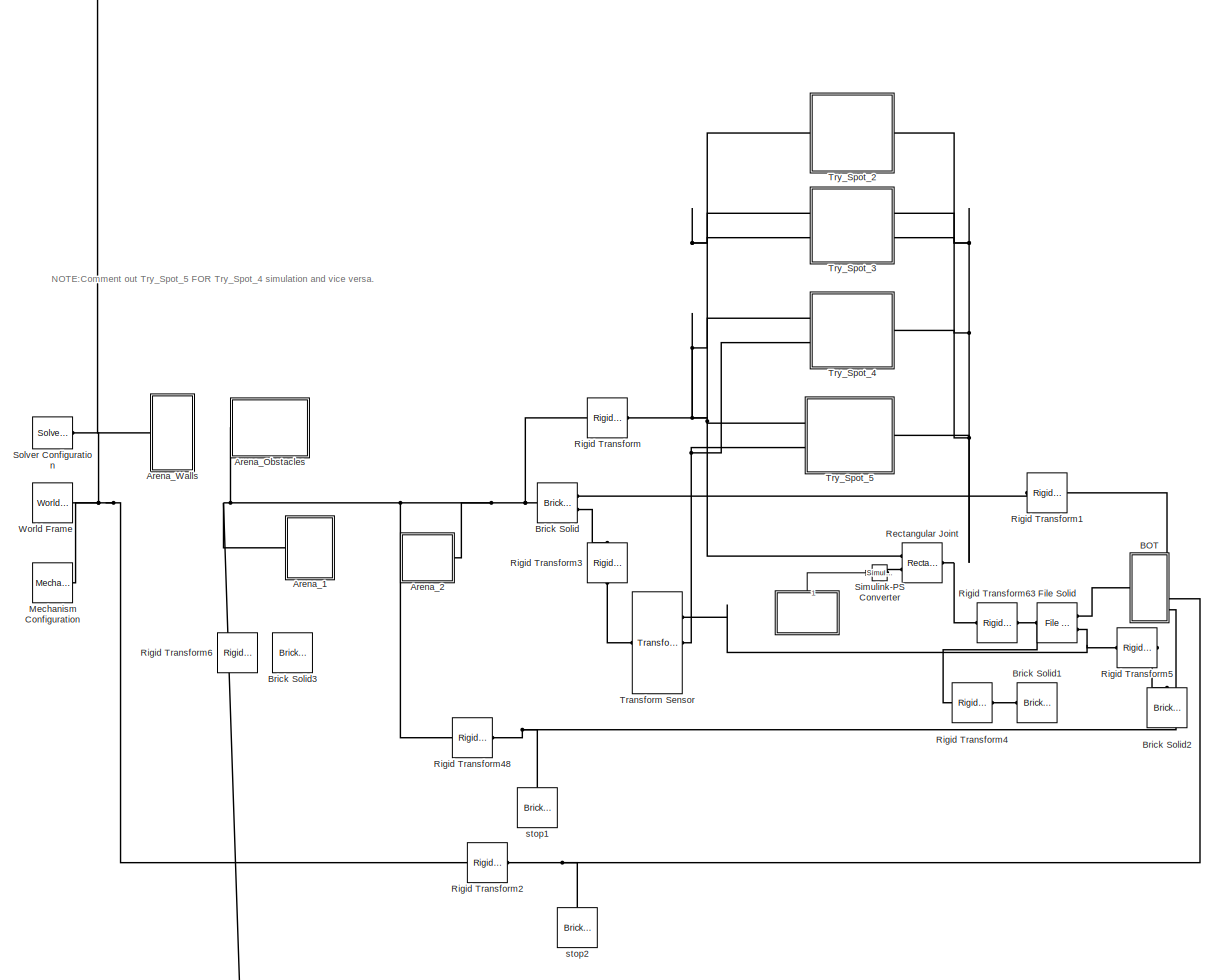
[diagram: root canvas - part 1/1, most of the canvas]
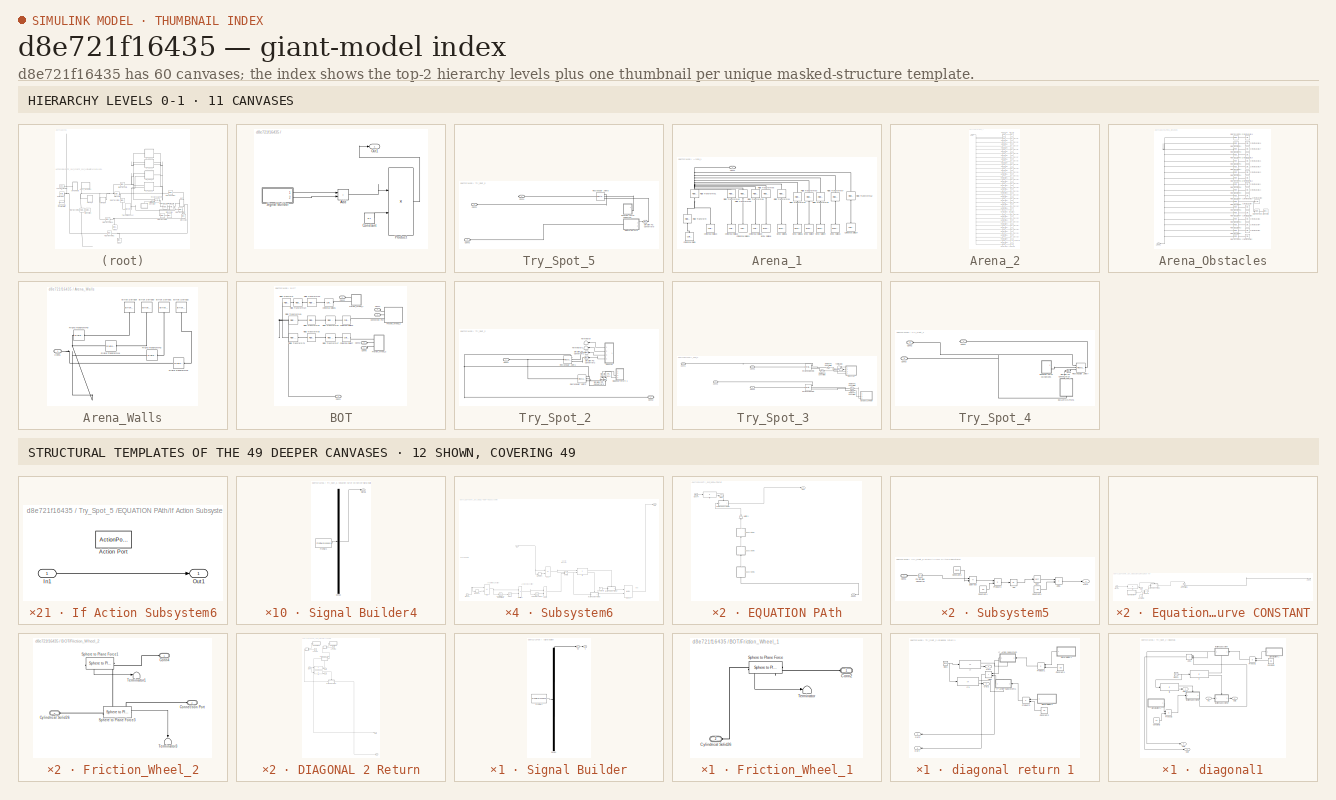
[diagram: thumbnail index - top-2 hierarchy levels (11 canvases) + 12 structural-template representatives of the remaining 49 canvases]
MODEL slx_d8e721f16435
KIND model
CONFIG AbsTol = auto
CONFIG EnableMultiTasking = on
CONFIG FixedStep = 0.001
CONFIG MaxStep = auto
CONFIG MinStep = auto
CONFIG RelTol = 1e-3
CONFIG SampleTimeConstraint = Unconstrained
CONFIG Solver = FixedStepAuto
CONFIG SolverName = FixedStepAuto
CONFIG StartTime = 0.0
CONFIG StopTime = 30
BLOCK [SubSystem]  
  NameLocation = right
  Ports = [0, 1]
  RequestExecContextInheritance = off
BLOCK [Sum]  /Add
  IconShape = rectangular
  Ports = [2, 1]
BLOCK [Constant]  /Constant
  Value = 8.1
BLOCK [Outport]  /Out1
BLOCK [Product]  /Product
  Ports = [2, 1]
BLOCK [SubSystem]  /Signal Builder
  ClipboardFcn = sigbuilder_block('clipboard');
  CloseFcn = sigbuilder_block('close');
  ContinueFcn = sigbuilder_block('continue');
  CopyFcn = sigbuilder_block('copy');
  DeleteFcn = sigbuilder_block('delete');
  LoadFcn = sigbuilder_block('load');
  MaskHideContents = on
  ModelCloseFcn = sigbuilder_block('modelClose');
  NameChangeFcn = sigbuilder_block('namechange');
  OpenFcn = sigbuilder_block('open',[6 30 1012.5 447.75 ]);
  PauseFcn = sigbuilder_block('pause');
  Ports = [0, 2]
  PreSaveFcn = sigbuilder_block('preSave');
  RequestExecContextInheritance = off
  StartFcn = sigbuilder_block('start');
  StopFcn = sigbuilder_block('stop');
  Tag = STV Subsys
BLOCK [Outport]  /Signal Builder/1
  Port = 2
  Tag = STV Outport
BLOCK [Demux]  /Signal Builder/Demux
  DisplayOption = none
  Outputs = 2
  Ports = [1, 2]
  Tag = STV Demux
BLOCK [FromWorkspace]  /Signal Builder/FromWs
  Tag = STV FromWs
  VariableName = tuvar
BLOCK [Outport]  /Signal Builder/S2
  Tag = STV Outport
BLOCK [SubSystem]  Try_Spot_5 
  Ports = [0, 0, 0, 0, 0, 2, 1]
  RequestExecContextInheritance = off
BLOCK [PMIOPort]  Try_Spot_5 /Conn1
  Side = Right
BLOCK [PMIOPort]  Try_Spot_5 /Conn2
  Port = 2
  Side = Left
BLOCK [PMIOPort]  Try_Spot_5 /Conn3
  Port = 3
  Side = Left
BLOCK [SubSystem]  Try_Spot_5 /EQUATION PAth
  Ports = [0, 2, 0, 0, 0, 1]
  RequestExecContextInheritance = off
BLOCK [Clock]  Try_Spot_5 /EQUATION PAth/Clock4
  Decimation = 1
BLOCK [PMIOPort]  Try_Spot_5 /EQUATION PAth/Conn1
  Side = Left
BLOCK [SubSystem]  Try_Spot_5 /EQUATION PAth/If Action Subsystem6
  Ports = [1, 1, 0, 0, 0, 0, 0, 1]
  RequestExecContextInheritance = off
  TreatAsAtomicUnit = on
BLOCK [ActionPort]  Try_Spot_5 /EQUATION PAth/If Action Subsystem6/Action Port
  ActionPortLabel = if(u1>20)
BLOCK [Inport]  Try_Spot_5 /EQUATION PAth/If Action Subsystem6/In1
BLOCK [Outport]  Try_Spot_5 /EQUATION PAth/If Action Subsystem6/Out1
BLOCK [If]  Try_Spot_5 /EQUATION PAth/If5
  IfExpression = u1>20
  Ports = [1, 2]
BLOCK [Gain]  Try_Spot_5 /EQUATION PAth/Multiply1
  Gain = gain
  NameLocation = right
BLOCK [Outport]  Try_Spot_5 /EQUATION PAth/Out1
BLOCK [Outport]  Try_Spot_5 /EQUATION PAth/Out2
  Port = 2
BLOCK [SubSystem]  Try_Spot_5 /EQUATION PAth/Subsystem5
  NameLocation = right
  Ports = [0, 1, 0, 0, 0, 1]
  RequestExecContextInheritance = off
BLOCK [Abs]  Try_Spot_5 /EQUATION PAth/Subsystem5/Abs
  SaturateOnIntegerOverflow = off
BLOCK [Sum]  Try_Spot_5 /EQUATION PAth/Subsystem5/Add1
  IconShape = rectangular
  Ports = [2, 1]
BLOCK [PMIOPort]  Try_Spot_5 /EQUATION PAth/Subsystem5/Conn1
  Side = Left
BLOCK [Constant]  Try_Spot_5 /EQUATION PAth/Subsystem5/Constant3
  Value = 0.525
BLOCK [Constant]  Try_Spot_5 /EQUATION PAth/Subsystem5/Constant4
  Value = 5.2
BLOCK [Constant]  Try_Spot_5 /EQUATION PAth/Subsystem5/Constant5
  Value = -2.5
BLOCK [Outport]  Try_Spot_5 /EQUATION PAth/Subsystem5/Out1
BLOCK [Reference]  Try_Spot_5 /EQUATION PAth/Subsystem5/PS-Simulink Converter  REF=nesl_utility/PS-Simulink
Converter
  Ports = [0, 1, 0, 0, 0, 1]
  SourceBlock = nesl_utility/PS-Simulink\nConverter
  SourceProductBaseCode = SS
  SourceType = PS-Simulink\nConverter
BLOCK [Product]  Try_Spot_5 /EQUATION PAth/Subsystem5/Product3
  Ports = [2, 1]
BLOCK [Sqrt]  Try_Spot_5 /EQUATION PAth/Subsystem5/Sqrt
  OutputSignalType = real
BLOCK [Sum]  Try_Spot_5 /EQUATION PAth/Subsystem5/Subtract
  IconShape = rectangular
  Inputs = +-
  Ports = [2, 1]
BLOCK [SubSystem]  Try_Spot_5 /EQUATION PAth/Subsystem6
  NameLocation = right
  Ports = [1, 1]
  RequestExecContextInheritance = off
BLOCK [Sum]  Try_Spot_5 /EQUATION PAth/Subsystem6/Add4
  IconShape = rectangular
  Ports = [2, 1]
BLOCK [Clock]  Try_Spot_5 /EQUATION PAth/Subsystem6/Clock2
  Decimation = 1
BLOCK [Reference]  Try_Spot_5 /EQUATION PAth/Subsystem6/Compare To Constant1  REF=simulink/Logic and Bit
Operations/Compare
To Constant
  Ports = [1, 1]
  SourceBlock = simulink/Logic and Bit\nOperations/Compare\nTo Constant
  SourceProductBaseCode = SL
  SourceType = Compare To Constant
BLOCK [Reference]  Try_Spot_5 /EQUATION PAth/Subsystem6/Compare To Zero1  REF=simulink/Logic and Bit
Operations/Compare
To Zero
  Ports = [1, 1]
  SourceBlock = simulink/Logic and Bit\nOperations/Compare\nTo Zero
  SourceProductBaseCode = SL
  SourceType = Compare To Zero
BLOCK [Constant]  Try_Spot_5 /EQUATION PAth/Subsystem6/Constant8
  Value = 0
BLOCK [Merge]  Try_Spot_5 /EQUATION PAth/Subsystem6/Force1
  Ports = [2, 1]
BLOCK [SubSystem]  Try_Spot_5 /EQUATION PAth/Subsystem6/If Action Subsystem7
  Ports = [1, 1, 0, 0, 0, 0, 0, 1]
  RequestExecContextInheritance = off
  TreatAsAtomicUnit = on
BLOCK [ActionPort]  Try_Spot_5 /EQUATION PAth/Subsystem6/If Action Subsystem7/Action Port
  ActionPortLabel = if(u1 == u2)
BLOCK [Inport]  Try_Spot_5 /EQUATION PAth/Subsystem6/If Action Subsystem7/In1
BLOCK [Outport]  Try_Spot_5 /EQUATION PAth/Subsystem6/If Action Subsystem7/Out1
  VectorParamsAs1DForOutWhenUnconnected = off
BLOCK [SubSystem]  Try_Spot_5 /EQUATION PAth/Subsystem6/If Action Subsystem8
  Ports = [1, 1, 0, 0, 0, 0, 0, 1]
  RequestExecContextInheritance = off
  TreatAsAtomicUnit = on
BLOCK [ActionPort]  Try_Spot_5 /EQUATION PAth/Subsystem6/If Action Subsystem8/Action Port
  ActionPortLabel = else
BLOCK [Inport]  Try_Spot_5 /EQUATION PAth/Subsystem6/If Action Subsystem8/In1
BLOCK [Outport]  Try_Spot_5 /EQUATION PAth/Subsystem6/If Action Subsystem8/Out1
  VectorParamsAs1DForOutWhenUnconnected = off
BLOCK [If]  Try_Spot_5 /EQUATION PAth/Subsystem6/If6
  IfExpression = u1 == u2
  NumInputs = 2
  Ports = [2, 2]
BLOCK [Inport]  Try_Spot_5 /EQUATION PAth/Subsystem6/In1
BLOCK [Memory]  Try_Spot_5 /EQUATION PAth/Subsystem6/Memory1
BLOCK [Memory]  Try_Spot_5 /EQUATION PAth/Subsystem6/Memory3
BLOCK [Product]  Try_Spot_5 /EQUATION PAth/Subsystem6/Multiply2
  Ports = [2, 1]
BLOCK [Logic]  Try_Spot_5 /EQUATION PAth/Subsystem6/NOT1
  AllPortsSameDT = off
  IconShape = distinctive
  Operator = NOT
  OutDataTypeStr = boolean
  Ports = [1, 1]
BLOCK [Outport]  Try_Spot_5 /EQUATION PAth/Subsystem6/Out1
BLOCK [Sum]  Try_Spot_5 /EQUATION PAth/Subsystem6/dt1
  IconShape = rectangular
  Inputs = +-
  Ports = [2, 1]
BLOCK [Product]  Try_Spot_5 /EQUATION PAth/Subsystem6/dv//dt1
  Inputs = */
  Ports = [2, 1]
BLOCK [Sum]  Try_Spot_5 /EQUATION PAth/Subsystem6/dv1
  IconShape = rectangular
  Inputs = +-
  Ports = [2, 1]
BLOCK [SubSystem]  Try_Spot_5 /EQUATION PAth/Subsystem7
  NameLocation = right
  Ports = [1, 1]
  RequestExecContextInheritance = off
BLOCK [Sum]  Try_Spot_5 /EQUATION PAth/Subsystem7/Add2
  IconShape = rectangular
  Ports = [2, 1]
BLOCK [Clock]  Try_Spot_5 /EQUATION PAth/Subsystem7/Clock3
  Decimation = 1
BLOCK [Reference]  Try_Spot_5 /EQUATION PAth/Subsystem7/Compare To Constant  REF=simulink/Logic and Bit
Operations/Compare
To Constant
  Ports = [1, 1]
  SourceBlock = simulink/Logic and Bit\nOperations/Compare\nTo Constant
  SourceProductBaseCode = SL
  SourceType = Compare To Constant
BLOCK [Reference]  Try_Spot_5 /EQUATION PAth/Subsystem7/Compare To Zero  REF=simulink/Logic and Bit
Operations/Compare
To Zero
  Ports = [1, 1]
  SourceBlock = simulink/Logic and Bit\nOperations/Compare\nTo Zero
  SourceProductBaseCode = SL
  SourceType = Compare To Zero
BLOCK [Constant]  Try_Spot_5 /EQUATION PAth/Subsystem7/Constant6
  Value = 0
BLOCK [Merge]  Try_Spot_5 /EQUATION PAth/Subsystem7/Force
  Ports = [2, 1]
BLOCK [SubSystem]  Try_Spot_5 /EQUATION PAth/Subsystem7/If Action Subsystem2
  Ports = [1, 1, 0, 0, 0, 0, 0, 1]
  RequestExecContextInheritance = off
  TreatAsAtomicUnit = on
BLOCK [ActionPort]  Try_Spot_5 /EQUATION PAth/Subsystem7/If Action Subsystem2/Action Port
  ActionPortLabel = if(u1 == u2)
BLOCK [Inport]  Try_Spot_5 /EQUATION PAth/Subsystem7/If Action Subsystem2/In1
BLOCK [Outport]  Try_Spot_5 /EQUATION PAth/Subsystem7/If Action Subsystem2/Out1
  VectorParamsAs1DForOutWhenUnconnected = off
BLOCK [SubSystem]  Try_Spot_5 /EQUATION PAth/Subsystem7/If Action Subsystem4
  Ports = [1, 1, 0, 0, 0, 0, 0, 1]
  RequestExecContextInheritance = off
  TreatAsAtomicUnit = on
BLOCK [ActionPort]  Try_Spot_5 /EQUATION PAth/Subsystem7/If Action Subsystem4/Action Port
  ActionPortLabel = else
BLOCK [Inport]  Try_Spot_5 /EQUATION PAth/Subsystem7/If Action Subsystem4/In1
BLOCK [Outport]  Try_Spot_5 /EQUATION PAth/Subsystem7/If Action Subsystem4/Out1
  VectorParamsAs1DForOutWhenUnconnected = off
BLOCK [If]  Try_Spot_5 /EQUATION PAth/Subsystem7/If2
  IfExpression = u1 == u2
  NumInputs = 2
  Ports = [2, 2]
BLOCK [Inport]  Try_Spot_5 /EQUATION PAth/Subsystem7/In1
BLOCK [Memory]  Try_Spot_5 /EQUATION PAth/Subsystem7/Memory
BLOCK [Memory]  Try_Spot_5 /EQUATION PAth/Subsystem7/Memory2
BLOCK [Product]  Try_Spot_5 /EQUATION PAth/Subsystem7/Multiply
  Ports = [2, 1]
BLOCK [Logic]  Try_Spot_5 /EQUATION PAth/Subsystem7/NOT
  AllPortsSameDT = off
  IconShape = distinctive
  Operator = NOT
  OutDataTypeStr = boolean
  Ports = [1, 1]
BLOCK [Outport]  Try_Spot_5 /EQUATION PAth/Subsystem7/Out1
BLOCK [Sum]  Try_Spot_5 /EQUATION PAth/Subsystem7/dt
  IconShape = rectangular
  Inputs = +-
  Ports = [2, 1]
BLOCK [Sum]  Try_Spot_5 /EQUATION PAth/Subsystem7/dv
  IconShape = rectangular
  Inputs = +-
  Ports = [2, 1]
BLOCK [Product]  Try_Spot_5 /EQUATION PAth/Subsystem7/dv//dt
  Inputs = */
  Ports = [2, 1]
BLOCK [SubSystem]  Try_Spot_5 /Equation Curve CONSTANT
  Ports = [0, 1, 0, 0, 0, 0, 1]
  RequestExecContextInheritance = off
BLOCK [Clock]  Try_Spot_5 /Equation Curve CONSTANT/Clock1
  Decimation = 1
BLOCK [PMIOPort]  Try_Spot_5 /Equation Curve CONSTANT/Conn1
  Side = Right
BLOCK [Constant]  Try_Spot_5 /Equation Curve CONSTANT/Constant7
  Value = 38
BLOCK [SubSystem]  Try_Spot_5 /Equation Curve CONSTANT/If Action Subsystem3
  Ports = [1, 1, 0, 0, 0, 0, 0, 1]
  RequestExecContextInheritance = off
  TreatAsAtomicUnit = on
BLOCK [ActionPort]  Try_Spot_5 /Equation Curve CONSTANT/If Action Subsystem3/Action Port
  ActionPortLabel = if(u1 > 20)
BLOCK [Inport]  Try_Spot_5 /Equation Curve CONSTANT/If Action Subsystem3/In1
BLOCK [Outport]  Try_Spot_5 /Equation Curve CONSTANT/If Action Subsystem3/Out1
BLOCK [If]  Try_Spot_5 /Equation Curve CONSTANT/If3
  IfExpression = u1 > 20
  Ports = [1, 2]
BLOCK [Outport]  Try_Spot_5 /Equation Curve CONSTANT/Out1
BLOCK [Product]  Try_Spot_5 /Equation Curve CONSTANT/Product4
  Ports = [2, 1]
BLOCK [SubSystem]  Try_Spot_5 /Equation Curve CONSTANT/Signal Builder4
  ClipboardFcn = sigbuilder_block('clipboard');
  CloseFcn = sigbuilder_block('close');
  ContinueFcn = sigbuilder_block('continue');
  CopyFcn = sigbuilder_block('copy');
  DeleteFcn = sigbuilder_block('delete');
  LoadFcn = sigbuilder_block('load');
  MaskHideContents = on
  ModelCloseFcn = sigbuilder_block('modelClose');
  NameChangeFcn = sigbuilder_block('namechange');
  OpenFcn = sigbuilder_block('open',[437.6 153 550.4 359.25 ]);
  PauseFcn = sigbuilder_block('pause');
  Ports = [0, 1]
  PreSaveFcn = sigbuilder_block('preSave');
  RequestExecContextInheritance = off
  StartFcn = sigbuilder_block('start');
  StopFcn = sigbuilder_block('stop');
  Tag = STV Subsys
BLOCK [Demux]  Try_Spot_5 /Equation Curve CONSTANT/Signal Builder4/Demux
  DisplayOption = none
  Outputs = 1
  Ports = [1, 1]
  Tag = STV Demux
BLOCK [FromWorkspace]  Try_Spot_5 /Equation Curve CONSTANT/Signal Builder4/FromWs
  Tag = STV FromWs
  VariableName = tuvar
BLOCK [Outport]  Try_Spot_5 /Equation Curve CONSTANT/Signal Builder4/Signal 1
  Tag = STV Outport
BLOCK [Reference]  Try_Spot_5 /Equation Curve CONSTANT/Simulink-PS Converter11  REF=nesl_utility/Simulink-PS
Converter
  NameLocation = left
  Ports = [1, 0, 0, 0, 0, 0, 1]
  SourceBlock = nesl_utility/Simulink-PS\nConverter
  SourceProductBaseCode = SS
  SourceType = Simulink-PS\nConverter
BLOCK [Reference]  Try_Spot_5 /Rectangular Joint5  REF=sm_lib/Joints/Rectangular
Joint
  NameLocation = top
  Ports = [0, 0, 0, 0, 0, 3, 1]
  SourceBlock = sm_lib/Joints/Rectangular\nJoint
  SourceProductBaseCode = MS
  SourceType = Rectangular\nJoint
BLOCK [Reference]  Try_Spot_5 /Simulink-PS Converter9  REF=nesl_utility/Simulink-PS
Converter
  Ports = [1, 0, 0, 0, 0, 0, 1]
  SourceBlock = nesl_utility/Simulink-PS\nConverter
  SourceProductBaseCode = SS
  SourceType = Simulink-PS\nConverter
BLOCK [SubSystem] Arena_1
  Ports = [0, 0, 0, 0, 0, 0, 1]
  RequestExecContextInheritance = off
BLOCK [Reference] Arena_1/Brick Solid33  REF=sm_lib/Body Elements/Brick Solid
  NameLocation = right
  Ports = [0, 0, 0, 0, 0, 0, 1]
  SourceBlock = sm_lib/Body Elements/Brick Solid
  SourceProductBaseCode = MS
  SourceType = Brick Solid
BLOCK [Reference] Arena_1/Brick Solid34  REF=sm_lib/Body Elements/Brick Solid
  NameLocation = right
  Ports = [0, 0, 0, 0, 0, 0, 1]
  SourceBlock = sm_lib/Body Elements/Brick Solid
  SourceProductBaseCode = MS
  SourceType = Brick Solid
BLOCK [Reference] Arena_1/Brick Solid35  REF=sm_lib/Body Elements/Brick Solid
  NameLocation = right
  Ports = [0, 0, 0, 0, 0, 0, 1]
  SourceBlock = sm_lib/Body Elements/Brick Solid
  SourceProductBaseCode = MS
  SourceType = Brick Solid
BLOCK [Reference] Arena_1/Brick Solid36  REF=sm_lib/Body Elements/Brick Solid
  NameLocation = right
  Ports = [0, 0, 0, 0, 0, 0, 1]
  SourceBlock = sm_lib/Body Elements/Brick Solid
  SourceProductBaseCode = MS
  SourceType = Brick Solid
BLOCK [Reference] Arena_1/Brick Solid37  REF=sm_lib/Body Elements/Brick Solid
  NameLocation = right
  Ports = [0, 0, 0, 0, 0, 0, 1]
  SourceBlock = sm_lib/Body Elements/Brick Solid
  SourceProductBaseCode = MS
  SourceType = Brick Solid
BLOCK [Reference] Arena_1/Brick Solid38  REF=sm_lib/Body Elements/Brick Solid
  NameLocation = right
  Ports = [0, 0, 0, 0, 0, 0, 1]
  SourceBlock = sm_lib/Body Elements/Brick Solid
  SourceProductBaseCode = MS
  SourceType = Brick Solid
BLOCK [PMIOPort] Arena_1/Conn1
  Side = Right
BLOCK [Reference] Arena_1/Cylindrical Solid1  REF=sm_lib/Body Elements/Cylindrical Solid
  NameLocation = right
  Ports = [0, 0, 0, 0, 0, 0, 1]
  SourceBlock = sm_lib/Body Elements/Cylindrical Solid
  SourceProductBaseCode = MS
  SourceType = Cylindrical Solid
BLOCK [Reference] Arena_1/Cylindrical Solid20  REF=sm_lib/Body Elements/Cylindrical Solid
  NameLocation = right
  Ports = [0, 0, 0, 0, 0, 0, 1]
  SourceBlock = sm_lib/Body Elements/Cylindrical Solid
  SourceProductBaseCode = MS
  SourceType = Cylindrical Solid
BLOCK [Reference] Arena_1/Cylindrical Solid21  REF=sm_lib/Body Elements/Cylindrical Solid
  NameLocation = right
  Ports = [0, 0, 0, 0, 0, 0, 1]
  SourceBlock = sm_lib/Body Elements/Cylindrical Solid
  SourceProductBaseCode = MS
  SourceType = Cylindrical Solid
BLOCK [Reference] Arena_1/Cylindrical Solid22  REF=sm_lib/Body Elements/Cylindrical Solid
  NameLocation = right
  Ports = [0, 0, 0, 0, 0, 0, 1]
  SourceBlock = sm_lib/Body Elements/Cylindrical Solid
  SourceProductBaseCode = MS
  SourceType = Cylindrical Solid
BLOCK [Reference] Arena_1/Cylindrical Solid23  REF=sm_lib/Body Elements/Cylindrical Solid
  NameLocation = right
  Ports = [0, 0, 0, 0, 0, 0, 1]
  SourceBlock = sm_lib/Body Elements/Cylindrical Solid
  SourceProductBaseCode = MS
  SourceType = Cylindrical Solid
BLOCK [Reference] Arena_1/Cylindrical Solid24  REF=sm_lib/Body Elements/Cylindrical Solid
  NameLocation = right
  Ports = [0, 0, 0, 0, 0, 0, 1]
  SourceBlock = sm_lib/Body Elements/Cylindrical Solid
  SourceProductBaseCode = MS
  SourceType = Cylindrical Solid
BLOCK [Reference] Arena_1/Rigid Transform  REF=sm_lib/Frames and
Transforms/Rigid
Transform
  NameLocation = left
  Ports = [0, 0, 0, 0, 0, 1, 1]
  SourceBlock = sm_lib/Frames and\nTransforms/Rigid\nTransform
  SourceProductBaseCode = MS
  SourceType = Rigid\nTransform
BLOCK [Reference] Arena_1/Rigid Transform52  REF=sm_lib/Frames and
Transforms/Rigid
Transform
  NameLocation = left
  Ports = [0, 0, 0, 0, 0, 1, 1]
  SourceBlock = sm_lib/Frames and\nTransforms/Rigid\nTransform
  SourceProductBaseCode = MS
  SourceType = Rigid\nTransform
BLOCK [Reference] Arena_1/Rigid Transform53  REF=sm_lib/Frames and
Transforms/Rigid
Transform
  NameLocation = left
  Ports = [0, 0, 0, 0, 0, 1, 1]
  SourceBlock = sm_lib/Frames and\nTransforms/Rigid\nTransform
  SourceProductBaseCode = MS
  SourceType = Rigid\nTransform
BLOCK [Reference] Arena_1/Rigid Transform54  REF=sm_lib/Frames and
Transforms/Rigid
Transform
  NameLocation = left
  Ports = [0, 0, 0, 0, 0, 1, 1]
  SourceBlock = sm_lib/Frames and\nTransforms/Rigid\nTransform
  SourceProductBaseCode = MS
  SourceType = Rigid\nTransform
BLOCK [Reference] Arena_1/Rigid Transform55  REF=sm_lib/Frames and
Transforms/Rigid
Transform
  NameLocation = left
  Ports = [0, 0, 0, 0, 0, 1, 1]
  SourceBlock = sm_lib/Frames and\nTransforms/Rigid\nTransform
  SourceProductBaseCode = MS
  SourceType = Rigid\nTransform
BLOCK [Reference] Arena_1/Rigid Transform56  REF=sm_lib/Frames and
Transforms/Rigid
Transform
  NameLocation = left
  Ports = [0, 0, 0, 0, 0, 1, 1]
  SourceBlock = sm_lib/Frames and\nTransforms/Rigid\nTransform
  SourceProductBaseCode = MS
  SourceType = Rigid\nTransform
BLOCK [Reference] Arena_1/Rigid Transform57  REF=sm_lib/Frames and
Transforms/Rigid
Transform
  NameLocation = left
  Ports = [0, 0, 0, 0, 0, 1, 1]
  SourceBlock = sm_lib/Frames and\nTransforms/Rigid\nTransform
  SourceProductBaseCode = MS
  SourceType = Rigid\nTransform
BLOCK [Reference] Arena_1/Rigid Transform58  REF=sm_lib/Frames and
Transforms/Rigid
Transform
  NameLocation = left
  Ports = [0, 0, 0, 0, 0, 1, 1]
  SourceBlock = sm_lib/Frames and\nTransforms/Rigid\nTransform
  SourceProductBaseCode = MS
  SourceType = Rigid\nTransform
BLOCK [Reference] Arena_1/Rigid Transform59  REF=sm_lib/Frames and
Transforms/Rigid
Transform
  NameLocation = left
  Ports = [0, 0, 0, 0, 0, 1, 1]
  SourceBlock = sm_lib/Frames and\nTransforms/Rigid\nTransform
  SourceProductBaseCode = MS
  SourceType = Rigid\nTransform
BLOCK [Reference] Arena_1/Rigid Transform60  REF=sm_lib/Frames and
Transforms/Rigid
Transform
  NameLocation = left
  Ports = [0, 0, 0, 0, 0, 1, 1]
  SourceBlock = sm_lib/Frames and\nTransforms/Rigid\nTransform
  SourceProductBaseCode = MS
  SourceType = Rigid\nTransform
BLOCK [Reference] Arena_1/Rigid Transform61  REF=sm_lib/Frames and
Transforms/Rigid
Transform
  NameLocation = left
  Ports = [0, 0, 0, 0, 0, 1, 1]
  SourceBlock = sm_lib/Frames and\nTransforms/Rigid\nTransform
  SourceProductBaseCode = MS
  SourceType = Rigid\nTransform
BLOCK [Reference] Arena_1/Rigid Transform62  REF=sm_lib/Frames and
Transforms/Rigid
Transform
  NameLocation = left
  Ports = [0, 0, 0, 0, 0, 1, 1]
  SourceBlock = sm_lib/Frames and\nTransforms/Rigid\nTransform
  SourceProductBaseCode = MS
  SourceType = Rigid\nTransform
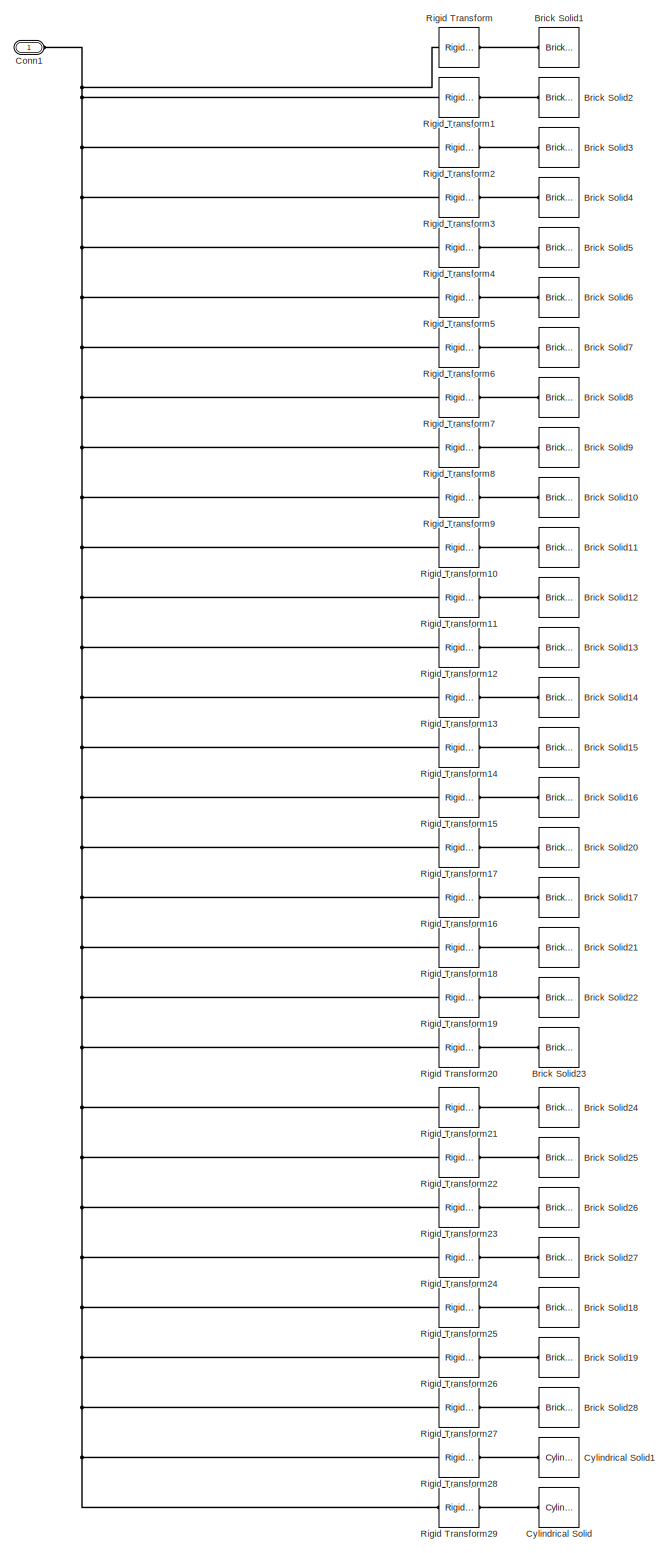
[diagram: Arena_2 - part 1/1, most of the canvas]
BLOCK [SubSystem] Arena_2
  Ports = [0, 0, 0, 0, 0, 1]
  RequestExecContextInheritance = off
BLOCK [Reference] Arena_2/Brick Solid1  REF=sm_lib/Body Elements/Brick Solid
  NameLocation = top
  Ports = [0, 0, 0, 0, 0, 0, 1]
  SourceBlock = sm_lib/Body Elements/Brick Solid
  SourceProductBaseCode = MS
  SourceType = Brick Solid
BLOCK [Reference] Arena_2/Brick Solid10  REF=sm_lib/Body Elements/Brick Solid
  NameLocation = top
  Ports = [0, 0, 0, 0, 0, 0, 1]
  SourceBlock = sm_lib/Body Elements/Brick Solid
  SourceProductBaseCode = MS
  SourceType = Brick Solid
BLOCK [Reference] Arena_2/Brick Solid11  REF=sm_lib/Body Elements/Brick Solid
  NameLocation = top
  Ports = [0, 0, 0, 0, 0, 0, 1]
  SourceBlock = sm_lib/Body Elements/Brick Solid
  SourceProductBaseCode = MS
  SourceType = Brick Solid
BLOCK [Reference] Arena_2/Brick Solid12  REF=sm_lib/Body Elements/Brick Solid
  NameLocation = top
  Ports = [0, 0, 0, 0, 0, 0, 1]
  SourceBlock = sm_lib/Body Elements/Brick Solid
  SourceProductBaseCode = MS
  SourceType = Brick Solid
BLOCK [Reference] Arena_2/Brick Solid13  REF=sm_lib/Body Elements/Brick Solid
  NameLocation = top
  Ports = [0, 0, 0, 0, 0, 0, 1]
  SourceBlock = sm_lib/Body Elements/Brick Solid
  SourceProductBaseCode = MS
  SourceType = Brick Solid
BLOCK [Reference] Arena_2/Brick Solid14  REF=sm_lib/Body Elements/Brick Solid
  NameLocation = top
  Ports = [0, 0, 0, 0, 0, 0, 1]
  SourceBlock = sm_lib/Body Elements/Brick Solid
  SourceProductBaseCode = MS
  SourceType = Brick Solid
BLOCK [Reference] Arena_2/Brick Solid15  REF=sm_lib/Body Elements/Brick Solid
  NameLocation = top
  Ports = [0, 0, 0, 0, 0, 0, 1]
  SourceBlock = sm_lib/Body Elements/Brick Solid
  SourceProductBaseCode = MS
  SourceType = Brick Solid
BLOCK [Reference] Arena_2/Brick Solid16  REF=sm_lib/Body Elements/Brick Solid
  NameLocation = top
  Ports = [0, 0, 0, 0, 0, 0, 1]
  SourceBlock = sm_lib/Body Elements/Brick Solid
  SourceProductBaseCode = MS
  SourceType = Brick Solid
BLOCK [Reference] Arena_2/Brick Solid17  REF=sm_lib/Body Elements/Brick Solid
  NameLocation = top
  Ports = [0, 0, 0, 0, 0, 0, 1]
  SourceBlock = sm_lib/Body Elements/Brick Solid
  SourceProductBaseCode = MS
  SourceType = Brick Solid
BLOCK [Reference] Arena_2/Brick Solid18  REF=sm_lib/Body Elements/Brick Solid
  NameLocation = top
  Ports = [0, 0, 0, 0, 0, 0, 1]
  SourceBlock = sm_lib/Body Elements/Brick Solid
  SourceProductBaseCode = MS
  SourceType = Brick Solid
BLOCK [Reference] Arena_2/Brick Solid19  REF=sm_lib/Body Elements/Brick Solid
  NameLocation = top
  Ports = [0, 0, 0, 0, 0, 0, 1]
  SourceBlock = sm_lib/Body Elements/Brick Solid
  SourceProductBaseCode = MS
  SourceType = Brick Solid
BLOCK [Reference] Arena_2/Brick Solid2  REF=sm_lib/Body Elements/Brick Solid
  NameLocation = top
  Ports = [0, 0, 0, 0, 0, 0, 1]
  SourceBlock = sm_lib/Body Elements/Brick Solid
  SourceProductBaseCode = MS
  SourceType = Brick Solid
BLOCK [Reference] Arena_2/Brick Solid20  REF=sm_lib/Body Elements/Brick Solid
  NameLocation = top
  Ports = [0, 0, 0, 0, 0, 0, 1]
  SourceBlock = sm_lib/Body Elements/Brick Solid
  SourceProductBaseCode = MS
  SourceType = Brick Solid
BLOCK [Reference] Arena_2/Brick Solid21  REF=sm_lib/Body Elements/Brick Solid
  NameLocation = top
  Ports = [0, 0, 0, 0, 0, 0, 1]
  SourceBlock = sm_lib/Body Elements/Brick Solid
  SourceProductBaseCode = MS
  SourceType = Brick Solid
BLOCK [Reference] Arena_2/Brick Solid22  REF=sm_lib/Body Elements/Brick Solid
  NameLocation = top
  Ports = [0, 0, 0, 0, 0, 0, 1]
  SourceBlock = sm_lib/Body Elements/Brick Solid
  SourceProductBaseCode = MS
  SourceType = Brick Solid
BLOCK [Reference] Arena_2/Brick Solid23  REF=sm_lib/Body Elements/Brick Solid
  NameLocation = top
  Ports = [0, 0, 0, 0, 0, 0, 1]
  SourceBlock = sm_lib/Body Elements/Brick Solid
  SourceProductBaseCode = MS
  SourceType = Brick Solid
BLOCK [Reference] Arena_2/Brick Solid24  REF=sm_lib/Body Elements/Brick Solid
  NameLocation = top
  Ports = [0, 0, 0, 0, 0, 0, 1]
  SourceBlock = sm_lib/Body Elements/Brick Solid
  SourceProductBaseCode = MS
  SourceType = Brick Solid
BLOCK [Reference] Arena_2/Brick Solid25  REF=sm_lib/Body Elements/Brick Solid
  NameLocation = top
  Ports = [0, 0, 0, 0, 0, 0, 1]
  SourceBlock = sm_lib/Body Elements/Brick Solid
  SourceProductBaseCode = MS
  SourceType = Brick Solid
BLOCK [Reference] Arena_2/Brick Solid26  REF=sm_lib/Body Elements/Brick Solid
  NameLocation = top
  Ports = [0, 0, 0, 0, 0, 0, 1]
  SourceBlock = sm_lib/Body Elements/Brick Solid
  SourceProductBaseCode = MS
  SourceType = Brick Solid
BLOCK [Reference] Arena_2/Brick Solid27  REF=sm_lib/Body Elements/Brick Solid
  NameLocation = top
  Ports = [0, 0, 0, 0, 0, 0, 1]
  SourceBlock = sm_lib/Body Elements/Brick Solid
  SourceProductBaseCode = MS
  SourceType = Brick Solid
BLOCK [Reference] Arena_2/Brick Solid28  REF=sm_lib/Body Elements/Brick Solid
  NameLocation = top
  Ports = [0, 0, 0, 0, 0, 0, 1]
  SourceBlock = sm_lib/Body Elements/Brick Solid
  SourceProductBaseCode = MS
  SourceType = Brick Solid
BLOCK [Reference] Arena_2/Brick Solid3  REF=sm_lib/Body Elements/Brick Solid
  NameLocation = top
  Ports = [0, 0, 0, 0, 0, 0, 1]
  SourceBlock = sm_lib/Body Elements/Brick Solid
  SourceProductBaseCode = MS
  SourceType = Brick Solid
BLOCK [Reference] Arena_2/Brick Solid4  REF=sm_lib/Body Elements/Brick Solid
  NameLocation = top
  Ports = [0, 0, 0, 0, 0, 0, 1]
  SourceBlock = sm_lib/Body Elements/Brick Solid
  SourceProductBaseCode = MS
  SourceType = Brick Solid
BLOCK [Reference] Arena_2/Brick Solid5  REF=sm_lib/Body Elements/Brick Solid
  NameLocation = top
  Ports = [0, 0, 0, 0, 0, 0, 1]
  SourceBlock = sm_lib/Body Elements/Brick Solid
  SourceProductBaseCode = MS
  SourceType = Brick Solid
BLOCK [Reference] Arena_2/Brick Solid6  REF=sm_lib/Body Elements/Brick Solid
  NameLocation = top
  Ports = [0, 0, 0, 0, 0, 0, 1]
  SourceBlock = sm_lib/Body Elements/Brick Solid
  SourceProductBaseCode = MS
  SourceType = Brick Solid
BLOCK [Reference] Arena_2/Brick Solid7  REF=sm_lib/Body Elements/Brick Solid
  NameLocation = top
  Ports = [0, 0, 0, 0, 0, 0, 1]
  SourceBlock = sm_lib/Body Elements/Brick Solid
  SourceProductBaseCode = MS
  SourceType = Brick Solid
BLOCK [Reference] Arena_2/Brick Solid8  REF=sm_lib/Body Elements/Brick Solid
  NameLocation = top
  Ports = [0, 0, 0, 0, 0, 0, 1]
  SourceBlock = sm_lib/Body Elements/Brick Solid
  SourceProductBaseCode = MS
  SourceType = Brick Solid
BLOCK [Reference] Arena_2/Brick Solid9  REF=sm_lib/Body Elements/Brick Solid
  NameLocation = top
  Ports = [0, 0, 0, 0, 0, 0, 1]
  SourceBlock = sm_lib/Body Elements/Brick Solid
  SourceProductBaseCode = MS
  SourceType = Brick Solid
BLOCK [PMIOPort] Arena_2/Conn1
  Side = Left
BLOCK [Reference] Arena_2/Cylindrical Solid  REF=sm_lib/Body Elements/Cylindrical Solid
  NameLocation = top
  Ports = [0, 0, 0, 0, 0, 0, 1]
  SourceBlock = sm_lib/Body Elements/Cylindrical Solid
  SourceProductBaseCode = MS
  SourceType = Cylindrical Solid
BLOCK [Reference] Arena_2/Cylindrical Solid1  REF=sm_lib/Body Elements/Cylindrical Solid
  NameLocation = top
  Ports = [0, 0, 0, 0, 0, 0, 1]
  SourceBlock = sm_lib/Body Elements/Cylindrical Solid
  SourceProductBaseCode = MS
  SourceType = Cylindrical Solid
BLOCK [Reference] Arena_2/Rigid Transform  REF=sm_lib/Frames and
Transforms/Rigid
Transform
  Ports = [0, 0, 0, 0, 0, 1, 1]
  SourceBlock = sm_lib/Frames and\nTransforms/Rigid\nTransform
  SourceProductBaseCode = MS
  SourceType = Rigid\nTransform
BLOCK [Reference] Arena_2/Rigid Transform1  REF=sm_lib/Frames and
Transforms/Rigid
Transform
  Ports = [0, 0, 0, 0, 0, 1, 1]
  SourceBlock = sm_lib/Frames and\nTransforms/Rigid\nTransform
  SourceProductBaseCode = MS
  SourceType = Rigid\nTransform
BLOCK [Reference] Arena_2/Rigid Transform10  REF=sm_lib/Frames and
Transforms/Rigid
Transform
  Ports = [0, 0, 0, 0, 0, 1, 1]
  SourceBlock = sm_lib/Frames and\nTransforms/Rigid\nTransform
  SourceProductBaseCode = MS
  SourceType = Rigid\nTransform
BLOCK [Reference] Arena_2/Rigid Transform11  REF=sm_lib/Frames and
Transforms/Rigid
Transform
  Ports = [0, 0, 0, 0, 0, 1, 1]
  SourceBlock = sm_lib/Frames and\nTransforms/Rigid\nTransform
  SourceProductBaseCode = MS
  SourceType = Rigid\nTransform
BLOCK [Reference] Arena_2/Rigid Transform12  REF=sm_lib/Frames and
Transforms/Rigid
Transform
  Ports = [0, 0, 0, 0, 0, 1, 1]
  SourceBlock = sm_lib/Frames and\nTransforms/Rigid\nTransform
  SourceProductBaseCode = MS
  SourceType = Rigid\nTransform
BLOCK [Reference] Arena_2/Rigid Transform13  REF=sm_lib/Frames and
Transforms/Rigid
Transform
  Ports = [0, 0, 0, 0, 0, 1, 1]
  SourceBlock = sm_lib/Frames and\nTransforms/Rigid\nTransform
  SourceProductBaseCode = MS
  SourceType = Rigid\nTransform
BLOCK [Reference] Arena_2/Rigid Transform14  REF=sm_lib/Frames and
Transforms/Rigid
Transform
  Ports = [0, 0, 0, 0, 0, 1, 1]
  SourceBlock = sm_lib/Frames and\nTransforms/Rigid\nTransform
  SourceProductBaseCode = MS
  SourceType = Rigid\nTransform
BLOCK [Reference] Arena_2/Rigid Transform15  REF=sm_lib/Frames and
Transforms/Rigid
Transform
  Ports = [0, 0, 0, 0, 0, 1, 1]
  SourceBlock = sm_lib/Frames and\nTransforms/Rigid\nTransform
  SourceProductBaseCode = MS
  SourceType = Rigid\nTransform
BLOCK [Reference] Arena_2/Rigid Transform16  REF=sm_lib/Frames and
Transforms/Rigid
Transform
  Ports = [0, 0, 0, 0, 0, 1, 1]
  SourceBlock = sm_lib/Frames and\nTransforms/Rigid\nTransform
  SourceProductBaseCode = MS
  SourceType = Rigid\nTransform
BLOCK [Reference] Arena_2/Rigid Transform17  REF=sm_lib/Frames and
Transforms/Rigid
Transform
  Ports = [0, 0, 0, 0, 0, 1, 1]
  SourceBlock = sm_lib/Frames and\nTransforms/Rigid\nTransform
  SourceProductBaseCode = MS
  SourceType = Rigid\nTransform
BLOCK [Reference] Arena_2/Rigid Transform18  REF=sm_lib/Frames and
Transforms/Rigid
Transform
  Ports = [0, 0, 0, 0, 0, 1, 1]
  SourceBlock = sm_lib/Frames and\nTransforms/Rigid\nTransform
  SourceProductBaseCode = MS
  SourceType = Rigid\nTransform
BLOCK [Reference] Arena_2/Rigid Transform19  REF=sm_lib/Frames and
Transforms/Rigid
Transform
  Ports = [0, 0, 0, 0, 0, 1, 1]
  SourceBlock = sm_lib/Frames and\nTransforms/Rigid\nTransform
  SourceProductBaseCode = MS
  SourceType = Rigid\nTransform
BLOCK [Reference] Arena_2/Rigid Transform2  REF=sm_lib/Frames and
Transforms/Rigid
Transform
  Ports = [0, 0, 0, 0, 0, 1, 1]
  SourceBlock = sm_lib/Frames and\nTransforms/Rigid\nTransform
  SourceProductBaseCode = MS
  SourceType = Rigid\nTransform
BLOCK [Reference] Arena_2/Rigid Transform20  REF=sm_lib/Frames and
Transforms/Rigid
Transform
  Ports = [0, 0, 0, 0, 0, 1, 1]
  SourceBlock = sm_lib/Frames and\nTransforms/Rigid\nTransform
  SourceProductBaseCode = MS
  SourceType = Rigid\nTransform
BLOCK [Reference] Arena_2/Rigid Transform21  REF=sm_lib/Frames and
Transforms/Rigid
Transform
  Ports = [0, 0, 0, 0, 0, 1, 1]
  SourceBlock = sm_lib/Frames and\nTransforms/Rigid\nTransform
  SourceProductBaseCode = MS
  SourceType = Rigid\nTransform
BLOCK [Reference] Arena_2/Rigid Transform22  REF=sm_lib/Frames and
Transforms/Rigid
Transform
  Ports = [0, 0, 0, 0, 0, 1, 1]
  SourceBlock = sm_lib/Frames and\nTransforms/Rigid\nTransform
  SourceProductBaseCode = MS
  SourceType = Rigid\nTransform
BLOCK [Reference] Arena_2/Rigid Transform23  REF=sm_lib/Frames and
Transforms/Rigid
Transform
  Ports = [0, 0, 0, 0, 0, 1, 1]
  SourceBlock = sm_lib/Frames and\nTransforms/Rigid\nTransform
  SourceProductBaseCode = MS
  SourceType = Rigid\nTransform
BLOCK [Reference] Arena_2/Rigid Transform24  REF=sm_lib/Frames and
Transforms/Rigid
Transform
  Ports = [0, 0, 0, 0, 0, 1, 1]
  SourceBlock = sm_lib/Frames and\nTransforms/Rigid\nTransform
  SourceProductBaseCode = MS
  SourceType = Rigid\nTransform
BLOCK [Reference] Arena_2/Rigid Transform25  REF=sm_lib/Frames and
Transforms/Rigid
Transform
  Ports = [0, 0, 0, 0, 0, 1, 1]
  SourceBlock = sm_lib/Frames and\nTransforms/Rigid\nTransform
  SourceProductBaseCode = MS
  SourceType = Rigid\nTransform
BLOCK [Reference] Arena_2/Rigid Transform26  REF=sm_lib/Frames and
Transforms/Rigid
Transform
  Ports = [0, 0, 0, 0, 0, 1, 1]
  SourceBlock = sm_lib/Frames and\nTransforms/Rigid\nTransform
  SourceProductBaseCode = MS
  SourceType = Rigid\nTransform
BLOCK [Reference] Arena_2/Rigid Transform27  REF=sm_lib/Frames and
Transforms/Rigid
Transform
  Ports = [0, 0, 0, 0, 0, 1, 1]
  SourceBlock = sm_lib/Frames and\nTransforms/Rigid\nTransform
  SourceProductBaseCode = MS
  SourceType = Rigid\nTransform
BLOCK [Reference] Arena_2/Rigid Transform28  REF=sm_lib/Frames and
Transforms/Rigid
Transform
  Ports = [0, 0, 0, 0, 0, 1, 1]
  SourceBlock = sm_lib/Frames and\nTransforms/Rigid\nTransform
  SourceProductBaseCode = MS
  SourceType = Rigid\nTransform
BLOCK [Reference] Arena_2/Rigid Transform29  REF=sm_lib/Frames and
Transforms/Rigid
Transform
  Ports = [0, 0, 0, 0, 0, 1, 1]
  SourceBlock = sm_lib/Frames and\nTransforms/Rigid\nTransform
  SourceProductBaseCode = MS
  SourceType = Rigid\nTransform
BLOCK [Reference] Arena_2/Rigid Transform3  REF=sm_lib/Frames and
Transforms/Rigid
Transform
  Ports = [0, 0, 0, 0, 0, 1, 1]
  SourceBlock = sm_lib/Frames and\nTransforms/Rigid\nTransform
  SourceProductBaseCode = MS
  SourceType = Rigid\nTransform
BLOCK [Reference] Arena_2/Rigid Transform4  REF=sm_lib/Frames and
Transforms/Rigid
Transform
  Ports = [0, 0, 0, 0, 0, 1, 1]
  SourceBlock = sm_lib/Frames and\nTransforms/Rigid\nTransform
  SourceProductBaseCode = MS
  SourceType = Rigid\nTransform
BLOCK [Reference] Arena_2/Rigid Transform5  REF=sm_lib/Frames and
Transforms/Rigid
Transform
  Ports = [0, 0, 0, 0, 0, 1, 1]
  SourceBlock = sm_lib/Frames and\nTransforms/Rigid\nTransform
  SourceProductBaseCode = MS
  SourceType = Rigid\nTransform
BLOCK [Reference] Arena_2/Rigid Transform6  REF=sm_lib/Frames and
Transforms/Rigid
Transform
  Ports = [0, 0, 0, 0, 0, 1, 1]
  SourceBlock = sm_lib/Frames and\nTransforms/Rigid\nTransform
  SourceProductBaseCode = MS
  SourceType = Rigid\nTransform
BLOCK [Reference] Arena_2/Rigid Transform7  REF=sm_lib/Frames and
Transforms/Rigid
Transform
  Ports = [0, 0, 0, 0, 0, 1, 1]
  SourceBlock = sm_lib/Frames and\nTransforms/Rigid\nTransform
  SourceProductBaseCode = MS
  SourceType = Rigid\nTransform
BLOCK [Reference] Arena_2/Rigid Transform8  REF=sm_lib/Frames and
Transforms/Rigid
Transform
  Ports = [0, 0, 0, 0, 0, 1, 1]
  SourceBlock = sm_lib/Frames and\nTransforms/Rigid\nTransform
  SourceProductBaseCode = MS
  SourceType = Rigid\nTransform
BLOCK [Reference] Arena_2/Rigid Transform9  REF=sm_lib/Frames and
Transforms/Rigid
Transform
  Ports = [0, 0, 0, 0, 0, 1, 1]
  SourceBlock = sm_lib/Frames and\nTransforms/Rigid\nTransform
  SourceProductBaseCode = MS
  SourceType = Rigid\nTransform
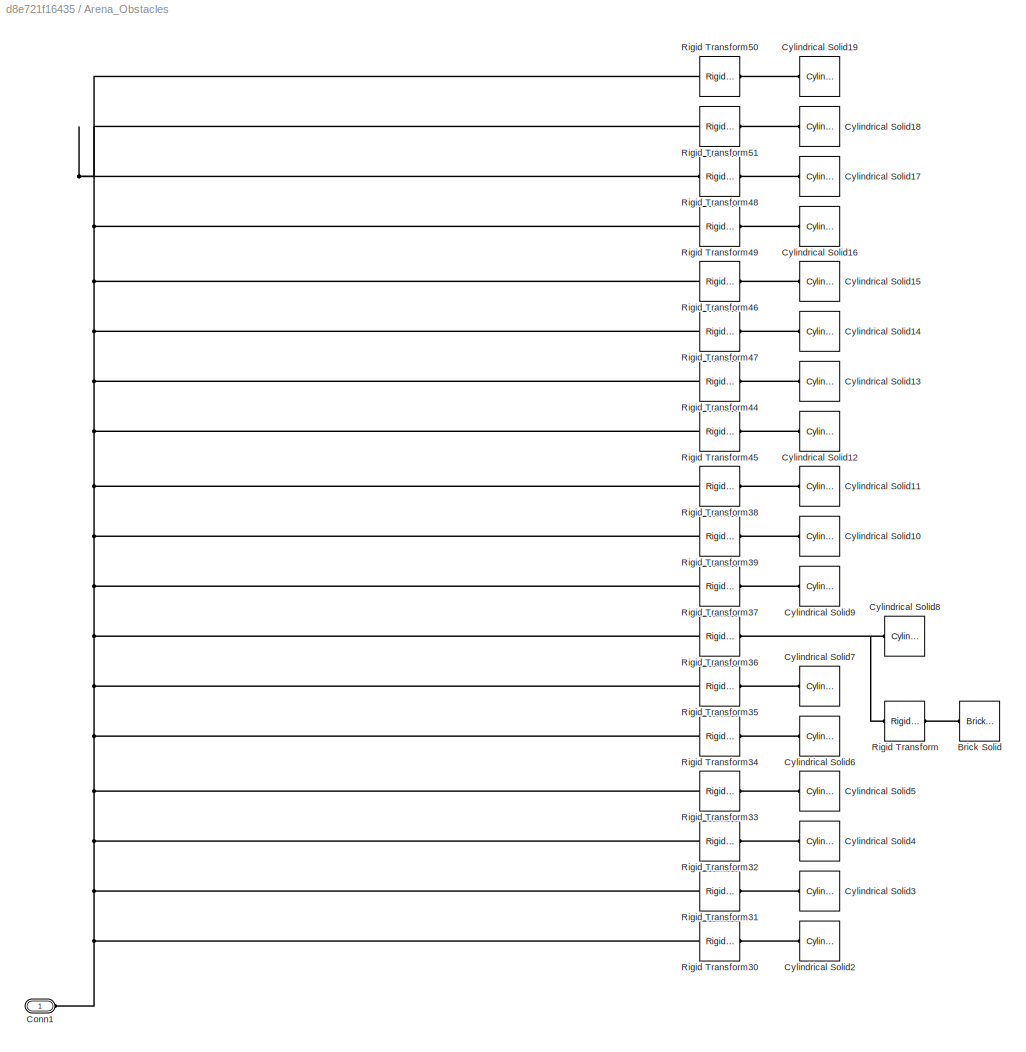
BLOCK [SubSystem] Arena_Obstacles
  Ports = [0, 0, 0, 0, 0, 1]
  RequestExecContextInheritance = off
BLOCK [Reference] Arena_Obstacles/Brick Solid  REF=sm_lib/Body Elements/Brick Solid
  NameLocation = top
  Ports = [0, 0, 0, 0, 0, 0, 1]
  SourceBlock = sm_lib/Body Elements/Brick Solid
  SourceProductBaseCode = MS
  SourceType = Brick Solid
BLOCK [PMIOPort] Arena_Obstacles/Conn1
  Side = Left
BLOCK [Reference] Arena_Obstacles/Cylindrical Solid10  REF=sm_lib/Body Elements/Cylindrical Solid
  NameLocation = top
  Ports = [0, 0, 0, 0, 0, 0, 1]
  SourceBlock = sm_lib/Body Elements/Cylindrical Solid
  SourceProductBaseCode = MS
  SourceType = Cylindrical Solid
BLOCK [Reference] Arena_Obstacles/Cylindrical Solid11  REF=sm_lib/Body Elements/Cylindrical Solid
  NameLocation = top
  Ports = [0, 0, 0, 0, 0, 0, 1]
  SourceBlock = sm_lib/Body Elements/Cylindrical Solid
  SourceProductBaseCode = MS
  SourceType = Cylindrical Solid
BLOCK [Reference] Arena_Obstacles/Cylindrical Solid12  REF=sm_lib/Body Elements/Cylindrical Solid
  NameLocation = top
  Ports = [0, 0, 0, 0, 0, 0, 1]
  SourceBlock = sm_lib/Body Elements/Cylindrical Solid
  SourceProductBaseCode = MS
  SourceType = Cylindrical Solid
BLOCK [Reference] Arena_Obstacles/Cylindrical Solid13  REF=sm_lib/Body Elements/Cylindrical Solid
  NameLocation = top
  Ports = [0, 0, 0, 0, 0, 0, 1]
  SourceBlock = sm_lib/Body Elements/Cylindrical Solid
  SourceProductBaseCode = MS
  SourceType = Cylindrical Solid
BLOCK [Reference] Arena_Obstacles/Cylindrical Solid14  REF=sm_lib/Body Elements/Cylindrical Solid
  NameLocation = top
  Ports = [0, 0, 0, 0, 0, 0, 1]
  SourceBlock = sm_lib/Body Elements/Cylindrical Solid
  SourceProductBaseCode = MS
  SourceType = Cylindrical Solid
BLOCK [Reference] Arena_Obstacles/Cylindrical Solid15  REF=sm_lib/Body Elements/Cylindrical Solid
  NameLocation = top
  Ports = [0, 0, 0, 0, 0, 0, 1]
  SourceBlock = sm_lib/Body Elements/Cylindrical Solid
  SourceProductBaseCode = MS
  SourceType = Cylindrical Solid
BLOCK [Reference] Arena_Obstacles/Cylindrical Solid16  REF=sm_lib/Body Elements/Cylindrical Solid
  NameLocation = top
  Ports = [0, 0, 0, 0, 0, 0, 1]
  SourceBlock = sm_lib/Body Elements/Cylindrical Solid
  SourceProductBaseCode = MS
  SourceType = Cylindrical Solid
BLOCK [Reference] Arena_Obstacles/Cylindrical Solid17  REF=sm_lib/Body Elements/Cylindrical Solid
  NameLocation = top
  Ports = [0, 0, 0, 0, 0, 0, 1]
  SourceBlock = sm_lib/Body Elements/Cylindrical Solid
  SourceProductBaseCode = MS
  SourceType = Cylindrical Solid
BLOCK [Reference] Arena_Obstacles/Cylindrical Solid18  REF=sm_lib/Body Elements/Cylindrical Solid
  NameLocation = top
  Ports = [0, 0, 0, 0, 0, 0, 1]
  SourceBlock = sm_lib/Body Elements/Cylindrical Solid
  SourceProductBaseCode = MS
  SourceType = Cylindrical Solid
BLOCK [Reference] Arena_Obstacles/Cylindrical Solid19  REF=sm_lib/Body Elements/Cylindrical Solid
  NameLocation = top
  Ports = [0, 0, 0, 0, 0, 0, 1]
  SourceBlock = sm_lib/Body Elements/Cylindrical Solid
  SourceProductBaseCode = MS
  SourceType = Cylindrical Solid
BLOCK [Reference] Arena_Obstacles/Cylindrical Solid2  REF=sm_lib/Body Elements/Cylindrical Solid
  NameLocation = top
  Ports = [0, 0, 0, 0, 0, 0, 1]
  SourceBlock = sm_lib/Body Elements/Cylindrical Solid
  SourceProductBaseCode = MS
  SourceType = Cylindrical Solid
BLOCK [Reference] Arena_Obstacles/Cylindrical Solid3  REF=sm_lib/Body Elements/Cylindrical Solid
  NameLocation = top
  Ports = [0, 0, 0, 0, 0, 0, 1]
  SourceBlock = sm_lib/Body Elements/Cylindrical Solid
  SourceProductBaseCode = MS
  SourceType = Cylindrical Solid
BLOCK [Reference] Arena_Obstacles/Cylindrical Solid4  REF=sm_lib/Body Elements/Cylindrical Solid
  NameLocation = top
  Ports = [0, 0, 0, 0, 0, 0, 1]
  SourceBlock = sm_lib/Body Elements/Cylindrical Solid
  SourceProductBaseCode = MS
  SourceType = Cylindrical Solid
BLOCK [Reference] Arena_Obstacles/Cylindrical Solid5  REF=sm_lib/Body Elements/Cylindrical Solid
  NameLocation = top
  Ports = [0, 0, 0, 0, 0, 0, 1]
  SourceBlock = sm_lib/Body Elements/Cylindrical Solid
  SourceProductBaseCode = MS
  SourceType = Cylindrical Solid
BLOCK [Reference] Arena_Obstacles/Cylindrical Solid6  REF=sm_lib/Body Elements/Cylindrical Solid
  NameLocation = top
  Ports = [0, 0, 0, 0, 0, 0, 1]
  SourceBlock = sm_lib/Body Elements/Cylindrical Solid
  SourceProductBaseCode = MS
  SourceType = Cylindrical Solid
BLOCK [Reference] Arena_Obstacles/Cylindrical Solid7  REF=sm_lib/Body Elements/Cylindrical Solid
  NameLocation = top
  Ports = [0, 0, 0, 0, 0, 0, 1]
  SourceBlock = sm_lib/Body Elements/Cylindrical Solid
  SourceProductBaseCode = MS
  SourceType = Cylindrical Solid
BLOCK [Reference] Arena_Obstacles/Cylindrical Solid8  REF=sm_lib/Body Elements/Cylindrical Solid
  NameLocation = top
  Ports = [0, 0, 0, 0, 0, 0, 1]
  SourceBlock = sm_lib/Body Elements/Cylindrical Solid
  SourceProductBaseCode = MS
  SourceType = Cylindrical Solid
BLOCK [Reference] Arena_Obstacles/Cylindrical Solid9  REF=sm_lib/Body Elements/Cylindrical Solid
  NameLocation = top
  Ports = [0, 0, 0, 0, 0, 0, 1]
  SourceBlock = sm_lib/Body Elements/Cylindrical Solid
  SourceProductBaseCode = MS
  SourceType = Cylindrical Solid
BLOCK [Reference] Arena_Obstacles/Rigid Transform  REF=sm_lib/Frames and
Transforms/Rigid
Transform
  Ports = [0, 0, 0, 0, 0, 1, 1]
  SourceBlock = sm_lib/Frames and\nTransforms/Rigid\nTransform
  SourceProductBaseCode = MS
  SourceType = Rigid\nTransform
BLOCK [Reference] Arena_Obstacles/Rigid Transform30  REF=sm_lib/Frames and
Transforms/Rigid
Transform
  Ports = [0, 0, 0, 0, 0, 1, 1]
  SourceBlock = sm_lib/Frames and\nTransforms/Rigid\nTransform
  SourceProductBaseCode = MS
  SourceType = Rigid\nTransform
BLOCK [Reference] Arena_Obstacles/Rigid Transform31  REF=sm_lib/Frames and
Transforms/Rigid
Transform
  Ports = [0, 0, 0, 0, 0, 1, 1]
  SourceBlock = sm_lib/Frames and\nTransforms/Rigid\nTransform
  SourceProductBaseCode = MS
  SourceType = Rigid\nTransform
BLOCK [Reference] Arena_Obstacles/Rigid Transform32  REF=sm_lib/Frames and
Transforms/Rigid
Transform
  Ports = [0, 0, 0, 0, 0, 1, 1]
  SourceBlock = sm_lib/Frames and\nTransforms/Rigid\nTransform
  SourceProductBaseCode = MS
  SourceType = Rigid\nTransform
BLOCK [Reference] Arena_Obstacles/Rigid Transform33  REF=sm_lib/Frames and
Transforms/Rigid
Transform
  Ports = [0, 0, 0, 0, 0, 1, 1]
  SourceBlock = sm_lib/Frames and\nTransforms/Rigid\nTransform
  SourceProductBaseCode = MS
  SourceType = Rigid\nTransform
BLOCK [Reference] Arena_Obstacles/Rigid Transform34  REF=sm_lib/Frames and
Transforms/Rigid
Transform
  Ports = [0, 0, 0, 0, 0, 1, 1]
  SourceBlock = sm_lib/Frames and\nTransforms/Rigid\nTransform
  SourceProductBaseCode = MS
  SourceType = Rigid\nTransform
BLOCK [Reference] Arena_Obstacles/Rigid Transform35  REF=sm_lib/Frames and
Transforms/Rigid
Transform
  Ports = [0, 0, 0, 0, 0, 1, 1]
  SourceBlock = sm_lib/Frames and\nTransforms/Rigid\nTransform
  SourceProductBaseCode = MS
  SourceType = Rigid\nTransform
BLOCK [Reference] Arena_Obstacles/Rigid Transform36  REF=sm_lib/Frames and
Transforms/Rigid
Transform
  Ports = [0, 0, 0, 0, 0, 1, 1]
  SourceBlock = sm_lib/Frames and\nTransforms/Rigid\nTransform
  SourceProductBaseCode = MS
  SourceType = Rigid\nTransform
BLOCK [Reference] Arena_Obstacles/Rigid Transform37  REF=sm_lib/Frames and
Transforms/Rigid
Transform
  Ports = [0, 0, 0, 0, 0, 1, 1]
  SourceBlock = sm_lib/Frames and\nTransforms/Rigid\nTransform
  SourceProductBaseCode = MS
  SourceType = Rigid\nTransform
BLOCK [Reference] Arena_Obstacles/Rigid Transform38  REF=sm_lib/Frames and
Transforms/Rigid
Transform
  Ports = [0, 0, 0, 0, 0, 1, 1]
  SourceBlock = sm_lib/Frames and\nTransforms/Rigid\nTransform
  SourceProductBaseCode = MS
  SourceType = Rigid\nTransform
BLOCK [Reference] Arena_Obstacles/Rigid Transform39  REF=sm_lib/Frames and
Transforms/Rigid
Transform
  Ports = [0, 0, 0, 0, 0, 1, 1]
  SourceBlock = sm_lib/Frames and\nTransforms/Rigid\nTransform
  SourceProductBaseCode = MS
  SourceType = Rigid\nTransform
BLOCK [Reference] Arena_Obstacles/Rigid Transform44  REF=sm_lib/Frames and
Transforms/Rigid
Transform
  Ports = [0, 0, 0, 0, 0, 1, 1]
  SourceBlock = sm_lib/Frames and\nTransforms/Rigid\nTransform
  SourceProductBaseCode = MS
  SourceType = Rigid\nTransform
BLOCK [Reference] Arena_Obstacles/Rigid Transform45  REF=sm_lib/Frames and
Transforms/Rigid
Transform
  Ports = [0, 0, 0, 0, 0, 1, 1]
  SourceBlock = sm_lib/Frames and\nTransforms/Rigid\nTransform
  SourceProductBaseCode = MS
  SourceType = Rigid\nTransform
BLOCK [Reference] Arena_Obstacles/Rigid Transform46  REF=sm_lib/Frames and
Transforms/Rigid
Transform
  Ports = [0, 0, 0, 0, 0, 1, 1]
  SourceBlock = sm_lib/Frames and\nTransforms/Rigid\nTransform
  SourceProductBaseCode = MS
  SourceType = Rigid\nTransform
BLOCK [Reference] Arena_Obstacles/Rigid Transform47  REF=sm_lib/Frames and
Transforms/Rigid
Transform
  Ports = [0, 0, 0, 0, 0, 1, 1]
  SourceBlock = sm_lib/Frames and\nTransforms/Rigid\nTransform
  SourceProductBaseCode = MS
  SourceType = Rigid\nTransform
BLOCK [Reference] Arena_Obstacles/Rigid Transform48  REF=sm_lib/Frames and
Transforms/Rigid
Transform
  Ports = [0, 0, 0, 0, 0, 1, 1]
  SourceBlock = sm_lib/Frames and\nTransforms/Rigid\nTransform
  SourceProductBaseCode = MS
  SourceType = Rigid\nTransform
BLOCK [Reference] Arena_Obstacles/Rigid Transform49  REF=sm_lib/Frames and
Transforms/Rigid
Transform
  Ports = [0, 0, 0, 0, 0, 1, 1]
  SourceBlock = sm_lib/Frames and\nTransforms/Rigid\nTransform
  SourceProductBaseCode = MS
  SourceType = Rigid\nTransform
BLOCK [Reference] Arena_Obstacles/Rigid Transform50  REF=sm_lib/Frames and
Transforms/Rigid
Transform
  Ports = [0, 0, 0, 0, 0, 1, 1]
  SourceBlock = sm_lib/Frames and\nTransforms/Rigid\nTransform
  SourceProductBaseCode = MS
  SourceType = Rigid\nTransform
BLOCK [Reference] Arena_Obstacles/Rigid Transform51  REF=sm_lib/Frames and
Transforms/Rigid
Transform
  Ports = [0, 0, 0, 0, 0, 1, 1]
  SourceBlock = sm_lib/Frames and\nTransforms/Rigid\nTransform
  SourceProductBaseCode = MS
  SourceType = Rigid\nTransform
BLOCK [SubSystem] Arena_Walls
  Ports = [0, 0, 0, 0, 0, 1]
  RequestExecContextInheritance = off
BLOCK [Reference] Arena_Walls/Brick Solid29  REF=sm_lib/Body Elements/Brick Solid
  NameLocation = left
  Ports = [0, 0, 0, 0, 0, 0, 1]
  SourceBlock = sm_lib/Body Elements/Brick Solid
  SourceProductBaseCode = MS
  SourceType = Brick Solid
BLOCK [Reference] Arena_Walls/Brick Solid30  REF=sm_lib/Body Elements/Brick Solid
  NameLocation = left
  Ports = [0, 0, 0, 0, 0, 0, 1]
  SourceBlock = sm_lib/Body Elements/Brick Solid
  SourceProductBaseCode = MS
  SourceType = Brick Solid
BLOCK [Reference] Arena_Walls/Brick Solid31  REF=sm_lib/Body Elements/Brick Solid
  NameLocation = left
  Ports = [0, 0, 0, 0, 0, 0, 1]
  SourceBlock = sm_lib/Body Elements/Brick Solid
  SourceProductBaseCode = MS
  SourceType = Brick Solid
BLOCK [Reference] Arena_Walls/Brick Solid32  REF=sm_lib/Body Elements/Brick Solid
  NameLocation = left
  Ports = [0, 0, 0, 0, 0, 0, 1]
  SourceBlock = sm_lib/Body Elements/Brick Solid
  SourceProductBaseCode = MS
  SourceType = Brick Solid
BLOCK [PMIOPort] Arena_Walls/Conn1
  Side = Left
BLOCK [Reference] Arena_Walls/Rigid Transform40  REF=sm_lib/Frames and
Transforms/Rigid
Transform
  Ports = [0, 0, 0, 0, 0, 1, 1]
  SourceBlock = sm_lib/Frames and\nTransforms/Rigid\nTransform
  SourceProductBaseCode = MS
  SourceType = Rigid\nTransform
BLOCK [Reference] Arena_Walls/Rigid Transform41  REF=sm_lib/Frames and
Transforms/Rigid
Transform
  Ports = [0, 0, 0, 0, 0, 1, 1]
  SourceBlock = sm_lib/Frames and\nTransforms/Rigid\nTransform
  SourceProductBaseCode = MS
  SourceType = Rigid\nTransform
BLOCK [Reference] Arena_Walls/Rigid Transform42  REF=sm_lib/Frames and
Transforms/Rigid
Transform
  Ports = [0, 0, 0, 0, 0, 1, 1]
  SourceBlock = sm_lib/Frames and\nTransforms/Rigid\nTransform
  SourceProductBaseCode = MS
  SourceType = Rigid\nTransform
BLOCK [Reference] Arena_Walls/Rigid Transform43  REF=sm_lib/Frames and
Transforms/Rigid
Transform
  Ports = [0, 0, 0, 0, 0, 1, 1]
  SourceBlock = sm_lib/Frames and\nTransforms/Rigid\nTransform
  SourceProductBaseCode = MS
  SourceType = Rigid\nTransform
BLOCK [SubSystem] BOT
  NameLocation = top
  Ports = [0, 0, 0, 0, 0, 5, 1]
  RequestExecContextInheritance = off
BLOCK [PMIOPort] BOT/Conn1
  Side = Right
BLOCK [PMIOPort] BOT/Conn2
  Port = 2
  Side = Left
BLOCK [PMIOPort] BOT/Conn3
  Port = 3
  Side = Left
BLOCK [PMIOPort] BOT/Conn4
  Port = 4
  Side = Left
BLOCK [PMIOPort] BOT/Conn5
  Port = 5
  Side = Left
BLOCK [PMIOPort] BOT/Connection Port
  Port = 6
  Side = Left
BLOCK [Reference] BOT/Cylindrical Solid25  REF=sm_lib/Body Elements/Cylindrical Solid
  NameLocation = top
  Ports = [0, 0, 0, 0, 0, 1, 1]
  SourceBlock = sm_lib/Body Elements/Cylindrical Solid
  SourceProductBaseCode = MS
  SourceType = Cylindrical Solid
BLOCK [Reference] BOT/Cylindrical Solid26  REF=sm_lib/Body Elements/Cylindrical Solid
  NameLocation = top
  Ports = [0, 0, 0, 0, 0, 1, 1]
  SourceBlock = sm_lib/Body Elements/Cylindrical Solid
  SourceProductBaseCode = MS
  SourceType = Cylindrical Solid
BLOCK [Reference] BOT/Cylindrical Solid27  REF=sm_lib/Body Elements/Cylindrical Solid
  NameLocation = top
  Ports = [0, 0, 0, 0, 0, 1, 1]
  SourceBlock = sm_lib/Body Elements/Cylindrical Solid
  SourceProductBaseCode = MS
  SourceType = Cylindrical Solid
BLOCK [SubSystem] BOT/Friction_Wheel_1
  Ports = [0, 0, 0, 0, 0, 2]
  RequestExecContextInheritance = off
BLOCK [PMIOPort] BOT/Friction_Wheel_1/Conn2
  NameLocation = top
  Side = Left
BLOCK [PMIOPort] BOT/Friction_Wheel_1/Cylindrical Solid26
  Port = 2
  Side = Left
BLOCK [Reference] BOT/Friction_Wheel_1/Sphere to Plane Force  REF=Contact_Forces_Lib/3D/Sphere to Plane Force
  NameLocation = top
  Ports = [0, 1, 0, 0, 0, 1, 1]
  SourceBlock = Contact_Forces_Lib/3D/Sphere to Plane Force
  SourceProductName = Simscape Multibody Contact Forces Library
  SourceType = Sphere to Plane Force
BLOCK [Terminator] BOT/Friction_Wheel_1/Terminator
BLOCK [SubSystem] BOT/Friction_Wheel_2
  Ports = [0, 0, 0, 0, 0, 3]
  RequestExecContextInheritance = off
BLOCK [PMIOPort] BOT/Friction_Wheel_2/Conn4
  NameLocation = top
  Side = Left
BLOCK [PMIOPort] BOT/Friction_Wheel_2/Connection Port
  NameLocation = top
  Port = 2
  Side = Left
BLOCK [PMIOPort] BOT/Friction_Wheel_2/Cylindrical Solid26
  Port = 3
  Side = Left
BLOCK [Reference] BOT/Friction_Wheel_2/Sphere to Plane Force1  REF=Contact_Forces_Lib/3D/Sphere to Plane Force
  NameLocation = top
  Ports = [0, 1, 0, 0, 0, 1, 1]
  SourceBlock = Contact_Forces_Lib/3D/Sphere to Plane Force
  SourceProductName = Simscape Multibody Contact Forces Library
  SourceType = Sphere to Plane Force
BLOCK [Reference] BOT/Friction_Wheel_2/Sphere to Plane Force3  REF=Contact_Forces_Lib/3D/Sphere to Plane Force
  NameLocation = top
  Ports = [0, 1, 0, 0, 0, 1, 1]
  SourceBlock = Contact_Forces_Lib/3D/Sphere to Plane Force
  SourceProductName = Simscape Multibody Contact Forces Library
  SourceType = Sphere to Plane Force
BLOCK [Terminator] BOT/Friction_Wheel_2/Terminator1
BLOCK [Terminator] BOT/Friction_Wheel_2/Terminator3
  NameLocation = left
BLOCK [SubSystem] BOT/Friction_Wheel_3
  Ports = [0, 0, 0, 0, 0, 3]
  RequestExecContextInheritance = off
BLOCK [PMIOPort] BOT/Friction_Wheel_3/Conn3
  NameLocation = top
  Port = 2
  Side = Left
BLOCK [PMIOPort] BOT/Friction_Wheel_3/Conn5
  NameLocation = top
  Port = 3
  Side = Left
BLOCK [PMIOPort] BOT/Friction_Wheel_3/Cylindrical Solid27
  Side = Left
BLOCK [Reference] BOT/Friction_Wheel_3/Sphere to Plane Force2  REF=Contact_Forces_Lib/3D/Sphere to Plane Force
  NameLocation = top
  Ports = [0, 1, 0, 0, 0, 1, 1]
  SourceBlock = Contact_Forces_Lib/3D/Sphere to Plane Force
  SourceProductName = Simscape Multibody Contact Forces Library
  SourceType = Sphere to Plane Force
BLOCK [Reference] BOT/Friction_Wheel_3/Sphere to Plane Force4  REF=Contact_Forces_Lib/3D/Sphere to Plane Force
  NameLocation = top
  Ports = [0, 1, 0, 0, 0, 1, 1]
  SourceBlock = Contact_Forces_Lib/3D/Sphere to Plane Force
  SourceProductName = Simscape Multibody Contact Forces Library
  SourceType = Sphere to Plane Force
BLOCK [Terminator] BOT/Friction_Wheel_3/Terminator
BLOCK [Terminator] BOT/Friction_Wheel_3/Terminator2
BLOCK [Reference] BOT/Rigid Transform  REF=sm_lib/Frames and
Transforms/Rigid
Transform
  Ports = [0, 0, 0, 0, 0, 1, 1]
  SourceBlock = sm_lib/Frames and\nTransforms/Rigid\nTransform
  SourceProductBaseCode = MS
  SourceType = Rigid\nTransform
BLOCK [Reference] BOT/Rigid Transform63  REF=sm_lib/Frames and
Transforms/Rigid
Transform
  Ports = [0, 0, 0, 0, 0, 1, 1]
  SourceBlock = sm_lib/Frames and\nTransforms/Rigid\nTransform
  SourceProductBaseCode = MS
  SourceType = Rigid\nTransform
BLOCK [Reference] BOT/Rigid Transform64  REF=sm_lib/Frames and
Transforms/Rigid
Transform
  Ports = [0, 0, 0, 0, 0, 1, 1]
  SourceBlock = sm_lib/Frames and\nTransforms/Rigid\nTransform
  SourceProductBaseCode = MS
  SourceType = Rigid\nTransform
BLOCK [Reference] BOT/Rigid Transform65  REF=sm_lib/Frames and
Transforms/Rigid
Transform
  Ports = [0, 0, 0, 0, 0, 1, 1]
  SourceBlock = sm_lib/Frames and\nTransforms/Rigid\nTransform
  SourceProductBaseCode = MS
  SourceType = Rigid\nTransform
BLOCK [Reference] BOT/Rigid Transform66  REF=sm_lib/Frames and
Transforms/Rigid
Transform
  Ports = [0, 0, 0, 0, 0, 1, 1]
  SourceBlock = sm_lib/Frames and\nTransforms/Rigid\nTransform
  SourceProductBaseCode = MS
  SourceType = Rigid\nTransform
BLOCK [Reference] BOT/Rigid Transform67  REF=sm_lib/Frames and
Transforms/Rigid
Transform
  Ports = [0, 0, 0, 0, 0, 1, 1]
  SourceBlock = sm_lib/Frames and\nTransforms/Rigid\nTransform
  SourceProductBaseCode = MS
  SourceType = Rigid\nTransform
BLOCK [Reference] BOT/Rigid Transform68  REF=sm_lib/Frames and
Transforms/Rigid
Transform
  Ports = [0, 0, 0, 0, 0, 1, 1]
  SourceBlock = sm_lib/Frames and\nTransforms/Rigid\nTransform
  SourceProductBaseCode = MS
  SourceType = Rigid\nTransform
BLOCK [Reference] BOT/Rigid Transform69  REF=sm_lib/Frames and
Transforms/Rigid
Transform
  Ports = [0, 0, 0, 0, 0, 1, 1]
  SourceBlock = sm_lib/Frames and\nTransforms/Rigid\nTransform
  SourceProductBaseCode = MS
  SourceType = Rigid\nTransform
BLOCK [Reference] BOT/Rigid Transform70  REF=sm_lib/Frames and
Transforms/Rigid
Transform
  Ports = [0, 0, 0, 0, 0, 1, 1]
  SourceBlock = sm_lib/Frames and\nTransforms/Rigid\nTransform
  SourceProductBaseCode = MS
  SourceType = Rigid\nTransform
BLOCK [Reference] Brick Solid  REF=sm_lib/Body Elements/Brick Solid
  NameLocation = top
  Ports = [0, 0, 0, 0, 0, 2, 1]
  SourceBlock = sm_lib/Body Elements/Brick Solid
  SourceProductBaseCode = MS
  SourceType = Brick Solid
BLOCK [Reference] Brick Solid1  REF=sm_lib/Body Elements/Brick Solid
  NameLocation = top
  Ports = [0, 0, 0, 0, 0, 0, 1]
  SourceBlock = sm_lib/Body Elements/Brick Solid
  SourceProductBaseCode = MS
  SourceType = Brick Solid
BLOCK [Reference] Brick Solid2  REF=sm_lib/Body Elements/Brick Solid
  NameLocation = right
  Ports = [0, 0, 0, 0, 0, 0, 1]
  SourceBlock = sm_lib/Body Elements/Brick Solid
  SourceProductBaseCode = MS
  SourceType = Brick Solid
BLOCK [Reference] Brick Solid3  REF=sm_lib/Body Elements/Brick Solid
  NameLocation = top
  Ports = [0, 0, 0, 0, 0, 0, 1]
  SourceBlock = sm_lib/Body Elements/Brick Solid
  SourceProductBaseCode = MS
  SourceType = Brick Solid
BLOCK [Reference] File Solid  REF=sm_lib/Body Elements/File Solid
  NameLocation = top
  Ports = [0, 0, 0, 0, 0, 2, 1]
  SourceBlock = sm_lib/Body Elements/File Solid
  SourceProductBaseCode = MS
  SourceType = File Solid
BLOCK [Reference] Mechanism Configuration  REF=sm_lib/Utilities/Mechanism
Configuration
  Ports = [0, 0, 0, 0, 0, 0, 1]
  SourceBlock = sm_lib/Utilities/Mechanism\nConfiguration
  SourceProductBaseCode = MS
  SourceType = Mechanism\nConfiguration
BLOCK [Reference] Rectangular Joint  REF=sm_lib/Joints/Rectangular
Joint
  Ports = [0, 0, 0, 0, 0, 2, 1]
  SourceBlock = sm_lib/Joints/Rectangular\nJoint
  SourceProductBaseCode = MS
  SourceType = Rectangular\nJoint
BLOCK [Reference] Rigid Transform  REF=sm_lib/Frames and
Transforms/Rigid
Transform
  Ports = [0, 0, 0, 0, 0, 1, 1]
  SourceBlock = sm_lib/Frames and\nTransforms/Rigid\nTransform
  SourceProductBaseCode = MS
  SourceType = Rigid\nTransform
BLOCK [Reference] Rigid Transform1  REF=sm_lib/Frames and
Transforms/Rigid
Transform
  Ports = [0, 0, 0, 0, 0, 1, 1]
  SourceBlock = sm_lib/Frames and\nTransforms/Rigid\nTransform
  SourceProductBaseCode = MS
  SourceType = Rigid\nTransform
BLOCK [Reference] Rigid Transform2  REF=sm_lib/Frames and
Transforms/Rigid
Transform
  Ports = [0, 0, 0, 0, 0, 1, 1]
  SourceBlock = sm_lib/Frames and\nTransforms/Rigid\nTransform
  SourceProductBaseCode = MS
  SourceType = Rigid\nTransform
BLOCK [Reference] Rigid Transform3  REF=sm_lib/Frames and
Transforms/Rigid
Transform
  NameLocation = right
  Ports = [0, 0, 0, 0, 0, 1, 1]
  SourceBlock = sm_lib/Frames and\nTransforms/Rigid\nTransform
  SourceProductBaseCode = MS
  SourceType = Rigid\nTransform
BLOCK [Reference] Rigid Transform4  REF=sm_lib/Frames and
Transforms/Rigid
Transform
  Ports = [0, 0, 0, 0, 0, 1, 1]
  SourceBlock = sm_lib/Frames and\nTransforms/Rigid\nTransform
  SourceProductBaseCode = MS
  SourceType = Rigid\nTransform
BLOCK [Reference] Rigid Transform48  REF=sm_lib/Frames and
Transforms/Rigid
Transform
  Ports = [0, 0, 0, 0, 0, 1, 1]
  SourceBlock = sm_lib/Frames and\nTransforms/Rigid\nTransform
  SourceProductBaseCode = MS
  SourceType = Rigid\nTransform
BLOCK [Reference] Rigid Transform5  REF=sm_lib/Frames and
Transforms/Rigid
Transform
  Ports = [0, 0, 0, 0, 0, 1, 1]
  SourceBlock = sm_lib/Frames and\nTransforms/Rigid\nTransform
  SourceProductBaseCode = MS
  SourceType = Rigid\nTransform
BLOCK [Reference] Rigid Transform6  REF=sm_lib/Frames and
Transforms/Rigid
Transform
  Ports = [0, 0, 0, 0, 0, 1, 1]
  SourceBlock = sm_lib/Frames and\nTransforms/Rigid\nTransform
  SourceProductBaseCode = MS
  SourceType = Rigid\nTransform
BLOCK [Reference] Rigid Transform63  REF=sm_lib/Frames and
Transforms/Rigid
Transform
  Ports = [0, 0, 0, 0, 0, 1, 1]
  SourceBlock = sm_lib/Frames and\nTransforms/Rigid\nTransform
  SourceProductBaseCode = MS
  SourceType = Rigid\nTransform
BLOCK [Reference] Simulink-PS Converter  REF=nesl_utility/Simulink-PS
Converter
  Ports = [1, 0, 0, 0, 0, 0, 1]
  SourceBlock = nesl_utility/Simulink-PS\nConverter
  SourceProductBaseCode = SS
  SourceType = Simulink-PS\nConverter
BLOCK [Reference] Solver Configuration  REF=nesl_utility/Solver
Configuration
  Ports = [0, 0, 0, 0, 0, 0, 1]
  SourceBlock = nesl_utility/Solver\nConfiguration
  SourceProductBaseCode = SS
  SourceType = Solver\nConfiguration
BLOCK [Reference] Transform Sensor  REF=sm_lib/Frames and
Transforms/Transform
Sensor
  Ports = [0, 0, 0, 0, 0, 1, 3]
  SourceBlock = sm_lib/Frames and\nTransforms/Transform\nSensor
  SourceProductBaseCode = MS
  SourceType = Transform\nSensor
BLOCK [SubSystem] Try_Spot_2 
  Ports = [0, 0, 0, 0, 0, 1, 1]
  RequestExecContextInheritance = off
BLOCK [PMIOPort] Try_Spot_2 /Conn1
  Side = Left
BLOCK [PMIOPort] Try_Spot_2 /Conn2 
  Port = 2
  Side = Right
BLOCK [Reference] Try_Spot_2 /Rectangular Joint1  REF=sm_lib/Joints/Rectangular
Joint
  NameLocation = top
  Ports = [0, 0, 0, 0, 0, 3, 1]
  SourceBlock = sm_lib/Joints/Rectangular\nJoint
  SourceProductBaseCode = MS
  SourceType = Rectangular\nJoint
BLOCK [Reference] Try_Spot_2 /Rectangular Joint2  REF=sm_lib/Joints/Rectangular
Joint
  NameLocation = top
  Ports = [0, 0, 0, 0, 0, 3, 1]
  SourceBlock = sm_lib/Joints/Rectangular\nJoint
  SourceProductBaseCode = MS
  SourceType = Rectangular\nJoint
BLOCK [Reference] Try_Spot_2 /Simulink-PS Converter1  REF=nesl_utility/Simulink-PS
Converter
  NameLocation = top
  Ports = [1, 0, 0, 0, 0, 0, 1]
  SourceBlock = nesl_utility/Simulink-PS\nConverter
  SourceProductBaseCode = SS
  SourceType = Simulink-PS\nConverter
BLOCK [Reference] Try_Spot_2 /Simulink-PS Converter2  REF=nesl_utility/Simulink-PS
Converter
  NameLocation = top
  Ports = [1, 0, 0, 0, 0, 0, 1]
  SourceBlock = nesl_utility/Simulink-PS\nConverter
  SourceProductBaseCode = SS
  SourceType = Simulink-PS\nConverter
BLOCK [Reference] Try_Spot_2 /Simulink-PS Converter3  REF=nesl_utility/Simulink-PS
Converter
  NameLocation = left
  Ports = [1, 0, 0, 0, 0, 0, 1]
  SourceBlock = nesl_utility/Simulink-PS\nConverter
  SourceProductBaseCode = SS
  SourceType = Simulink-PS\nConverter
BLOCK [Reference] Try_Spot_2 /Simulink-PS Converter4  REF=nesl_utility/Simulink-PS
Converter
  NameLocation = left
  Ports = [1, 0, 0, 0, 0, 0, 1]
  SourceBlock = nesl_utility/Simulink-PS\nConverter
  SourceProductBaseCode = SS
  SourceType = Simulink-PS\nConverter
BLOCK [Terminator] Try_Spot_2 /Terminator
  NameLocation = top
BLOCK [Terminator] Try_Spot_2 /Terminator1
  NameLocation = top
BLOCK [SubSystem] Try_Spot_2 /diagonal return 1
  NameLocation = top
  Ports = [0, 4]
  RequestExecContextInheritance = off
BLOCK [Sum] Try_Spot_2 /diagonal return 1/Add1
  IconShape = rectangular
  NameLocation = top
  Ports = [2, 1]
BLOCK [Clock] Try_Spot_2 /diagonal return 1/Clock
BLOCK [Constant] Try_Spot_2 /diagonal return 1/Constant1
  NameLocation = top
  Value = -25
BLOCK [Constant] Try_Spot_2 /diagonal return 1/Constant2
  NameLocation = top
  Value = 15
BLOCK [If] Try_Spot_2 /diagonal return 1/If
  IfExpression = u1 > 8
  Ports = [1, 2]
BLOCK [SubSystem] Try_Spot_2 /diagonal return 1/If Action Subsystem
  NameLocation = top
  Ports = [1, 1, 0, 0, 0, 0, 0, 1]
  RequestExecContextInheritance = off
  TreatAsAtomicUnit = on
BLOCK [ActionPort] Try_Spot_2 /diagonal return 1/If Action Subsystem/Action Port
  ActionPortLabel = if(u1 > 8)
BLOCK [Inport] Try_Spot_2 /diagonal return 1/If Action Subsystem/In1
BLOCK [Outport] Try_Spot_2 /diagonal return 1/If Action Subsystem/Out1
BLOCK [SubSystem] Try_Spot_2 /diagonal return 1/If Action Subsystem1
  NameLocation = top
  Ports = [1, 1, 0, 0, 0, 0, 0, 1]
  RequestExecContextInheritance = off
  TreatAsAtomicUnit = on
BLOCK [ActionPort] Try_Spot_2 /diagonal return 1/If Action Subsystem1/Action Port
  ActionPortLabel = if(u1 > 8)
BLOCK [Inport] Try_Spot_2 /diagonal return 1/If Action Subsystem1/In1
BLOCK [Outport] Try_Spot_2 /diagonal return 1/If Action Subsystem1/Out1
BLOCK [If] Try_Spot_2 /diagonal return 1/If1
  IfExpression = u1 > 8
  Ports = [1, 2]
BLOCK [Outport] Try_Spot_2 /diagonal return 1/Out1
BLOCK [Outport] Try_Spot_2 /diagonal return 1/Out2
  Port = 2
BLOCK [Outport] Try_Spot_2 /diagonal return 1/Out3
  Port = 3
BLOCK [Outport] Try_Spot_2 /diagonal return 1/Out4
  Port = 4
BLOCK [Product] Try_Spot_2 /diagonal return 1/Product1
  NameLocation = top
  Ports = [2, 1]
BLOCK [Product] Try_Spot_2 /diagonal return 1/Product2
  NameLocation = top
  Ports = [2, 1]
BLOCK [SubSystem] Try_Spot_2 /diagonal return 1/Signal Builder1
  ClipboardFcn = sigbuilder_block('clipboard');
  CloseFcn = sigbuilder_block('close');
  ContinueFcn = sigbuilder_block('continue');
  CopyFcn = sigbuilder_block('copy');
  DeleteFcn = sigbuilder_block('delete');
  LoadFcn = sigbuilder_block('load');
  MaskHideContents = on
  ModelCloseFcn = sigbuilder_block('modelClose');
  NameChangeFcn = sigbuilder_block('namechange');
  NameLocation = top
  OpenFcn = sigbuilder_block('open',[437.6 153 550.4 359.25 ]);
  PauseFcn = sigbuilder_block('pause');
  Ports = [0, 1]
  PreSaveFcn = sigbuilder_block('preSave');
  RequestExecContextInheritance = off
  StartFcn = sigbuilder_block('start');
  StopFcn = sigbuilder_block('stop');
  Tag = STV Subsys
BLOCK [Demux] Try_Spot_2 /diagonal return 1/Signal Builder1/Demux
  DisplayOption = none
  Outputs = 1
  Ports = [1, 1]
  Tag = STV Demux
BLOCK [FromWorkspace] Try_Spot_2 /diagonal return 1/Signal Builder1/FromWs
  Tag = STV FromWs
  VariableName = tuvar
BLOCK [Outport] Try_Spot_2 /diagonal return 1/Signal Builder1/Signal 1
  Tag = STV Outport
BLOCK [SubSystem] Try_Spot_2 /diagonal return 1/Signal Builder2
  ClipboardFcn = sigbuilder_block('clipboard');
  CloseFcn = sigbuilder_block('close');
  ContinueFcn = sigbuilder_block('continue');
  CopyFcn = sigbuilder_block('copy');
  DeleteFcn = sigbuilder_block('delete');
  LoadFcn = sigbuilder_block('load');
  MaskHideContents = on
  ModelCloseFcn = sigbuilder_block('modelClose');
  NameChangeFcn = sigbuilder_block('namechange');
  NameLocation = top
  OpenFcn = sigbuilder_block('open',[437.6 153 550.4 359.25 ]);
  PauseFcn = sigbuilder_block('pause');
  Ports = [0, 1]
  PreSaveFcn = sigbuilder_block('preSave');
  RequestExecContextInheritance = off
  StartFcn = sigbuilder_block('start');
  StopFcn = sigbuilder_block('stop');
  Tag = STV Subsys
BLOCK [Demux] Try_Spot_2 /diagonal return 1/Signal Builder2/Demux
  DisplayOption = none
  Outputs = 1
  Ports = [1, 1]
  Tag = STV Demux
BLOCK [FromWorkspace] Try_Spot_2 /diagonal return 1/Signal Builder2/FromWs
  Tag = STV FromWs
  VariableName = tuvar
BLOCK [Outport] Try_Spot_2 /diagonal return 1/Signal Builder2/Signal 1
  Tag = STV Outport
BLOCK [SubSystem] Try_Spot_2 /diagonal1
  NameLocation = top
  Ports = [1, 4]
  RequestExecContextInheritance = off
BLOCK [Sum] Try_Spot_2 /diagonal1/Add1
  IconShape = rectangular
  NameLocation = top
  Ports = [2, 1]
BLOCK [Clock] Try_Spot_2 /diagonal1/Clock1
BLOCK [Constant] Try_Spot_2 /diagonal1/Constant1
  NameLocation = top
  Value = -25
BLOCK [Constant] Try_Spot_2 /diagonal1/Constant2
  Value = 15
BLOCK [If] Try_Spot_2 /diagonal1/If
  IfExpression = u1 > 5
  Ports = [1, 2]
BLOCK [SubSystem] Try_Spot_2 /diagonal1/If Action Subsystem
  NameLocation = top
  Ports = [1, 1, 0, 0, 0, 0, 0, 1]
  RequestExecContextInheritance = off
  TreatAsAtomicUnit = on
BLOCK [ActionPort] Try_Spot_2 /diagonal1/If Action Subsystem/Action Port
  ActionPortLabel = if(u1 > 5)
BLOCK [Inport] Try_Spot_2 /diagonal1/If Action Subsystem/In1
BLOCK [Outport] Try_Spot_2 /diagonal1/If Action Subsystem/Out1
BLOCK [SubSystem] Try_Spot_2 /diagonal1/If Action Subsystem1
  Ports = [1, 1, 0, 0, 0, 0, 0, 1]
  RequestExecContextInheritance = off
  TreatAsAtomicUnit = on
BLOCK [ActionPort] Try_Spot_2 /diagonal1/If Action Subsystem1/Action Port
  ActionPortLabel = else
BLOCK [Inport] Try_Spot_2 /diagonal1/If Action Subsystem1/In1
BLOCK [Outport] Try_Spot_2 /diagonal1/If Action Subsystem1/Out1
BLOCK [SubSystem] Try_Spot_2 /diagonal1/If Action Subsystem2
  Ports = [1, 1, 0, 0, 0, 0, 0, 1]
  RequestExecContextInheritance = off
  TreatAsAtomicUnit = on
BLOCK [ActionPort] Try_Spot_2 /diagonal1/If Action Subsystem2/Action Port
  ActionPortLabel = if(u1 > 5)
BLOCK [Inport] Try_Spot_2 /diagonal1/If Action Subsystem2/In1
BLOCK [Outport] Try_Spot_2 /diagonal1/If Action Subsystem2/Out1
BLOCK [If] Try_Spot_2 /diagonal1/If1
  IfExpression = u1 > 5
  Ports = [1, 2]
BLOCK [Inport] Try_Spot_2 /diagonal1/In1
BLOCK [Outport] Try_Spot_2 /diagonal1/Out1
BLOCK [Outport] Try_Spot_2 /diagonal1/Out2
  Port = 2
BLOCK [Outport] Try_Spot_2 /diagonal1/Out3
  Port = 3
BLOCK [Outport] Try_Spot_2 /diagonal1/Out4
  Port = 4
BLOCK [Product] Try_Spot_2 /diagonal1/Product1
  NameLocation = top
  Ports = [2, 1]
BLOCK [Product] Try_Spot_2 /diagonal1/Product2
  Ports = [2, 1]
BLOCK [SubSystem] Try_Spot_2 /diagonal1/Signal Builder1
  ClipboardFcn = sigbuilder_block('clipboard');
  CloseFcn = sigbuilder_block('close');
  ContinueFcn = sigbuilder_block('continue');
  CopyFcn = sigbuilder_block('copy');
  DeleteFcn = sigbuilder_block('delete');
  LoadFcn = sigbuilder_block('load');
  MaskHideContents = on
  ModelCloseFcn = sigbuilder_block('modelClose');
  NameChangeFcn = sigbuilder_block('namechange');
  NameLocation = top
  OpenFcn = sigbuilder_block('open',[437.6 153 550.4 359.25 ]);
  PauseFcn = sigbuilder_block('pause');
  Ports = [0, 1]
  PreSaveFcn = sigbuilder_block('preSave');
  RequestExecContextInheritance = off
  StartFcn = sigbuilder_block('start');
  StopFcn = sigbuilder_block('stop');
  Tag = STV Subsys
BLOCK [Demux] Try_Spot_2 /diagonal1/Signal Builder1/Demux
  DisplayOption = none
  Outputs = 1
  Ports = [1, 1]
  Tag = STV Demux
BLOCK [FromWorkspace] Try_Spot_2 /diagonal1/Signal Builder1/FromWs
  Tag = STV FromWs
  VariableName = tuvar
BLOCK [Outport] Try_Spot_2 /diagonal1/Signal Builder1/Signal 1
  Tag = STV Outport
BLOCK [SubSystem] Try_Spot_2 /diagonal1/Signal Builder2
  ClipboardFcn = sigbuilder_block('clipboard');
  CloseFcn = sigbuilder_block('close');
  ContinueFcn = sigbuilder_block('continue');
  CopyFcn = sigbuilder_block('copy');
  DeleteFcn = sigbuilder_block('delete');
  LoadFcn = sigbuilder_block('load');
  MaskHideContents = on
  ModelCloseFcn = sigbuilder_block('modelClose');
  NameChangeFcn = sigbuilder_block('namechange');
  OpenFcn = sigbuilder_block('open',[437.6 153 550.4 359.25 ]);
  PauseFcn = sigbuilder_block('pause');
  Ports = [0, 1]
  PreSaveFcn = sigbuilder_block('preSave');
  RequestExecContextInheritance = off
  StartFcn = sigbuilder_block('start');
  StopFcn = sigbuilder_block('stop');
  Tag = STV Subsys
BLOCK [Demux] Try_Spot_2 /diagonal1/Signal Builder2/Demux
  DisplayOption = none
  Outputs = 1
  Ports = [1, 1]
  Tag = STV Demux
BLOCK [FromWorkspace] Try_Spot_2 /diagonal1/Signal Builder2/FromWs
  Tag = STV FromWs
  VariableName = tuvar
BLOCK [Outport] Try_Spot_2 /diagonal1/Signal Builder2/Signal 1
  Tag = STV Outport
BLOCK [SubSystem] Try_Spot_3 
  Ports = [0, 0, 0, 0, 0, 2, 2]
  RequestExecContextInheritance = off
BLOCK [PMIOPort] Try_Spot_3 /Conn1
  Side = Left
BLOCK [PMIOPort] Try_Spot_3 /Conn2
  Port = 2
  Side = Right
BLOCK [PMIOPort] Try_Spot_3 /Conn3
  Port = 3
  Side = Left
BLOCK [PMIOPort] Try_Spot_3 /Conn4
  Port = 4
  Side = Right
BLOCK [SubSystem] Try_Spot_3 /DIAGONAL 2 Return
  NameLocation = top
  Ports = [0, 4]
  RequestExecContextInheritance = off
BLOCK [Clock] Try_Spot_3 /DIAGONAL 2 Return/Clock
BLOCK [Constant] Try_Spot_3 /DIAGONAL 2 Return/Constant1
  NameLocation = top
  Value = -17.5
BLOCK [Constant] Try_Spot_3 /DIAGONAL 2 Return/Constant2
  NameLocation = top
  Value = -27.5
BLOCK [If] Try_Spot_3 /DIAGONAL 2 Return/If
  IfExpression = u1 > 16.5
  Ports = [1, 2]
BLOCK [SubSystem] Try_Spot_3 /DIAGONAL 2 Return/If Action Subsystem
  NameLocation = top
  Ports = [1, 1, 0, 0, 0, 0, 0, 1]
  RequestExecContextInheritance = off
  TreatAsAtomicUnit = on
BLOCK [ActionPort] Try_Spot_3 /DIAGONAL 2 Return/If Action Subsystem/Action Port
  ActionPortLabel = if(u1 > 16.5)
BLOCK [Inport] Try_Spot_3 /DIAGONAL 2 Return/If Action Subsystem/In1
BLOCK [Outport] Try_Spot_3 /DIAGONAL 2 Return/If Action Subsystem/Out1
BLOCK [SubSystem] Try_Spot_3 /DIAGONAL 2 Return/If Action Subsystem1
  Ports = [1, 1, 0, 0, 0, 0, 0, 1]
  RequestExecContextInheritance = off
  TreatAsAtomicUnit = on
BLOCK [ActionPort] Try_Spot_3 /DIAGONAL 2 Return/If Action Subsystem1/Action Port
  ActionPortLabel = if(u1 > 16.5)
BLOCK [Inport] Try_Spot_3 /DIAGONAL 2 Return/If Action Subsystem1/In1
BLOCK [Outport] Try_Spot_3 /DIAGONAL 2 Return/If Action Subsystem1/Out1
BLOCK [If] Try_Spot_3 /DIAGONAL 2 Return/If1
  IfExpression = u1 > 16.5
  Ports = [1, 2]
BLOCK [Outport] Try_Spot_3 /DIAGONAL 2 Return/Out1
BLOCK [Outport] Try_Spot_3 /DIAGONAL 2 Return/Out2
  Port = 2
BLOCK [Outport] Try_Spot_3 /DIAGONAL 2 Return/Out3
  Port = 3
BLOCK [Outport] Try_Spot_3 /DIAGONAL 2 Return/Out4
  Port = 4
BLOCK [Product] Try_Spot_3 /DIAGONAL 2 Return/Product1
  NameLocation = top
  Ports = [2, 1]
BLOCK [Product] Try_Spot_3 /DIAGONAL 2 Return/Product2
  NameLocation = top
  Ports = [2, 1]
BLOCK [SubSystem] Try_Spot_3 /DIAGONAL 2 Return/Signal Builder2
  ClipboardFcn = sigbuilder_block('clipboard');
  CloseFcn = sigbuilder_block('close');
  ContinueFcn = sigbuilder_block('continue');
  CopyFcn = sigbuilder_block('copy');
  DeleteFcn = sigbuilder_block('delete');
  LoadFcn = sigbuilder_block('load');
  MaskHideContents = on
  ModelCloseFcn = sigbuilder_block('modelClose');
  NameChangeFcn = sigbuilder_block('namechange');
  NameLocation = top
  OpenFcn = sigbuilder_block('open',[437.6 153 550.4 359.25 ]);
  PauseFcn = sigbuilder_block('pause');
  Ports = [0, 1]
  PreSaveFcn = sigbuilder_block('preSave');
  RequestExecContextInheritance = off
  StartFcn = sigbuilder_block('start');
  StopFcn = sigbuilder_block('stop');
  Tag = STV Subsys
BLOCK [Demux] Try_Spot_3 /DIAGONAL 2 Return/Signal Builder2/Demux
  DisplayOption = none
  Outputs = 1
  Ports = [1, 1]
  Tag = STV Demux
BLOCK [FromWorkspace] Try_Spot_3 /DIAGONAL 2 Return/Signal Builder2/FromWs
  Tag = STV FromWs
  VariableName = tuvar
BLOCK [Outport] Try_Spot_3 /DIAGONAL 2 Return/Signal Builder2/Signal 1
  Tag = STV Outport
BLOCK [SubSystem] Try_Spot_3 /DIAGONAL 2 Return/Signal Builder3
  ClipboardFcn = sigbuilder_block('clipboard');
  CloseFcn = sigbuilder_block('close');
  ContinueFcn = sigbuilder_block('continue');
  CopyFcn = sigbuilder_block('copy');
  DeleteFcn = sigbuilder_block('delete');
  LoadFcn = sigbuilder_block('load');
  MaskHideContents = on
  ModelCloseFcn = sigbuilder_block('modelClose');
  NameChangeFcn = sigbuilder_block('namechange');
  NameLocation = top
  OpenFcn = sigbuilder_block('open',[437.6 153 550.4 359.25 ]);
  PauseFcn = sigbuilder_block('pause');
  Ports = [0, 1]
  PreSaveFcn = sigbuilder_block('preSave');
  RequestExecContextInheritance = off
  StartFcn = sigbuilder_block('start');
  StopFcn = sigbuilder_block('stop');
  Tag = STV Subsys
BLOCK [Demux] Try_Spot_3 /DIAGONAL 2 Return/Signal Builder3/Demux
  DisplayOption = none
  Outputs = 1
  Ports = [1, 1]
  Tag = STV Demux
BLOCK [FromWorkspace] Try_Spot_3 /DIAGONAL 2 Return/Signal Builder3/FromWs
  Tag = STV FromWs
  VariableName = tuvar
BLOCK [Outport] Try_Spot_3 /DIAGONAL 2 Return/Signal Builder3/Signal 1
  Tag = STV Outport
BLOCK [SubSystem] Try_Spot_3 /Diagonal 2
  NameLocation = top
  Ports = [0, 4]
  RequestExecContextInheritance = off
BLOCK [Clock] Try_Spot_3 /Diagonal 2/Clock
BLOCK [Constant] Try_Spot_3 /Diagonal 2/Constant1
  NameLocation = top
  Value = -17
BLOCK [Constant] Try_Spot_3 /Diagonal 2/Constant2
  NameLocation = top
  Value = -25
BLOCK [If] Try_Spot_3 /Diagonal 2/If
  IfExpression = u1 > 13
  Ports = [1, 2]
BLOCK [SubSystem] Try_Spot_3 /Diagonal 2/If Action Subsystem
  NameLocation = top
  Ports = [1, 1, 0, 0, 0, 0, 0, 1]
  RequestExecContextInheritance = off
  TreatAsAtomicUnit = on
BLOCK [ActionPort] Try_Spot_3 /Diagonal 2/If Action Subsystem/Action Port
  ActionPortLabel = if(u1 > 13)
BLOCK [Inport] Try_Spot_3 /Diagonal 2/If Action Subsystem/In1
BLOCK [Outport] Try_Spot_3 /Diagonal 2/If Action Subsystem/Out1
BLOCK [SubSystem] Try_Spot_3 /Diagonal 2/If Action Subsystem1
  Ports = [1, 1, 0, 0, 0, 0, 0, 1]
  RequestExecContextInheritance = off
  TreatAsAtomicUnit = on
BLOCK [ActionPort] Try_Spot_3 /Diagonal 2/If Action Subsystem1/Action Port
  ActionPortLabel = if(u1 > 13)
BLOCK [Inport] Try_Spot_3 /Diagonal 2/If Action Subsystem1/In1
BLOCK [Outport] Try_Spot_3 /Diagonal 2/If Action Subsystem1/Out1
BLOCK [If] Try_Spot_3 /Diagonal 2/If1
  IfExpression = u1 > 13
  Ports = [1, 2]
BLOCK [Outport] Try_Spot_3 /Diagonal 2/Out1
BLOCK [Outport] Try_Spot_3 /Diagonal 2/Out2
  Port = 2
BLOCK [Outport] Try_Spot_3 /Diagonal 2/Out3
  Port = 3
BLOCK [Outport] Try_Spot_3 /Diagonal 2/Out4
  Port = 4
BLOCK [Product] Try_Spot_3 /Diagonal 2/Product1
  NameLocation = top
  Ports = [2, 1]
BLOCK [Product] Try_Spot_3 /Diagonal 2/Product2
  NameLocation = top
  Ports = [2, 1]
BLOCK [SubSystem] Try_Spot_3 /Diagonal 2/Signal Builder1
  ClipboardFcn = sigbuilder_block('clipboard');
  CloseFcn = sigbuilder_block('close');
  ContinueFcn = sigbuilder_block('continue');
  CopyFcn = sigbuilder_block('copy');
  DeleteFcn = sigbuilder_block('delete');
  LoadFcn = sigbuilder_block('load');
  MaskHideContents = on
  ModelCloseFcn = sigbuilder_block('modelClose');
  NameChangeFcn = sigbuilder_block('namechange');
  NameLocation = top
  OpenFcn = sigbuilder_block('open',[437.6 153 550.4 359.25 ]);
  PauseFcn = sigbuilder_block('pause');
  Ports = [0, 1]
  PreSaveFcn = sigbuilder_block('preSave');
  RequestExecContextInheritance = off
  StartFcn = sigbuilder_block('start');
  StopFcn = sigbuilder_block('stop');
  Tag = STV Subsys
BLOCK [Demux] Try_Spot_3 /Diagonal 2/Signal Builder1/Demux
  DisplayOption = none
  Outputs = 1
  Ports = [1, 1]
  Tag = STV Demux
BLOCK [FromWorkspace] Try_Spot_3 /Diagonal 2/Signal Builder1/FromWs
  Tag = STV FromWs
  VariableName = tuvar
BLOCK [Outport] Try_Spot_3 /Diagonal 2/Signal Builder1/Signal 1
  Tag = STV Outport
BLOCK [SubSystem] Try_Spot_3 /Diagonal 2/Signal Builder2
  ClipboardFcn = sigbuilder_block('clipboard');
  CloseFcn = sigbuilder_block('close');
  ContinueFcn = sigbuilder_block('continue');
  CopyFcn = sigbuilder_block('copy');
  DeleteFcn = sigbuilder_block('delete');
  LoadFcn = sigbuilder_block('load');
  MaskHideContents = on
  ModelCloseFcn = sigbuilder_block('modelClose');
  NameChangeFcn = sigbuilder_block('namechange');
  NameLocation = top
  OpenFcn = sigbuilder_block('open',[437.6 153 550.4 359.25 ]);
  PauseFcn = sigbuilder_block('pause');
  Ports = [0, 1]
  PreSaveFcn = sigbuilder_block('preSave');
  RequestExecContextInheritance = off
  StartFcn = sigbuilder_block('start');
  StopFcn = sigbuilder_block('stop');
  Tag = STV Subsys
BLOCK [Demux] Try_Spot_3 /Diagonal 2/Signal Builder2/Demux
  DisplayOption = none
  Outputs = 1
  Ports = [1, 1]
  Tag = STV Demux
BLOCK [FromWorkspace] Try_Spot_3 /Diagonal 2/Signal Builder2/FromWs
  Tag = STV FromWs
  VariableName = tuvar
BLOCK [Outport] Try_Spot_3 /Diagonal 2/Signal Builder2/Signal 1
  Tag = STV Outport
BLOCK [Reference] Try_Spot_3 /Rectangular Joint3  REF=sm_lib/Joints/Rectangular
Joint
  Ports = [0, 0, 0, 0, 0, 3, 1]
  SourceBlock = sm_lib/Joints/Rectangular\nJoint
  SourceProductBaseCode = MS
  SourceType = Rectangular\nJoint
BLOCK [Reference] Try_Spot_3 /Rectangular Joint4  REF=sm_lib/Joints/Rectangular
Joint
  Ports = [0, 0, 0, 0, 0, 3, 1]
  SourceBlock = sm_lib/Joints/Rectangular\nJoint
  SourceProductBaseCode = MS
  SourceType = Rectangular\nJoint
BLOCK [Reference] Try_Spot_3 /Simulink-PS Converter5  REF=nesl_utility/Simulink-PS
Converter
  NameLocation = top
  Ports = [1, 0, 0, 0, 0, 0, 1]
  SourceBlock = nesl_utility/Simulink-PS\nConverter
  SourceProductBaseCode = SS
  SourceType = Simulink-PS\nConverter
BLOCK [Reference] Try_Spot_3 /Simulink-PS Converter6  REF=nesl_utility/Simulink-PS
Converter
  NameLocation = top
  Ports = [1, 0, 0, 0, 0, 0, 1]
  SourceBlock = nesl_utility/Simulink-PS\nConverter
  SourceProductBaseCode = SS
  SourceType = Simulink-PS\nConverter
BLOCK [Reference] Try_Spot_3 /Simulink-PS Converter7  REF=nesl_utility/Simulink-PS
Converter
  NameLocation = top
  Ports = [1, 0, 0, 0, 0, 0, 1]
  SourceBlock = nesl_utility/Simulink-PS\nConverter
  SourceProductBaseCode = SS
  SourceType = Simulink-PS\nConverter
BLOCK [Reference] Try_Spot_3 /Simulink-PS Converter8  REF=nesl_utility/Simulink-PS
Converter
  NameLocation = top
  Ports = [1, 0, 0, 0, 0, 0, 1]
  SourceBlock = nesl_utility/Simulink-PS\nConverter
  SourceProductBaseCode = SS
  SourceType = Simulink-PS\nConverter
BLOCK [Terminator] Try_Spot_3 /Terminator2
  NameLocation = top
BLOCK [Terminator] Try_Spot_3 /Terminator3
  NameLocation = top
BLOCK [SubSystem] Try_Spot_4
  Commented = on
  Ports = [0, 0, 0, 0, 0, 2, 1]
  RequestExecContextInheritance = off
BLOCK [PMIOPort] Try_Spot_4/Conn1
  Side = Right
BLOCK [PMIOPort] Try_Spot_4/Conn2
  Port = 2
  Side = Left
BLOCK [PMIOPort] Try_Spot_4/Conn3
  Port = 3
  Side = Left
BLOCK [SubSystem] Try_Spot_4/EQUATION PAth1
  NameLocation = right
  Ports = [0, 2, 0, 0, 0, 1]
  RequestExecContextInheritance = off
BLOCK [Clock] Try_Spot_4/EQUATION PAth1/Clock4
  Decimation = 1
BLOCK [PMIOPort] Try_Spot_4/EQUATION PAth1/Conn1
  Side = Left
BLOCK [SubSystem] Try_Spot_4/EQUATION PAth1/If Action Subsystem6
  Ports = [1, 1, 0, 0, 0, 0, 0, 1]
  RequestExecContextInheritance = off
  TreatAsAtomicUnit = on
BLOCK [ActionPort] Try_Spot_4/EQUATION PAth1/If Action Subsystem6/Action Port
  ActionPortLabel = if(u1>20)
BLOCK [Inport] Try_Spot_4/EQUATION PAth1/If Action Subsystem6/In1
BLOCK [Outport] Try_Spot_4/EQUATION PAth1/If Action Subsystem6/Out1
BLOCK [If] Try_Spot_4/EQUATION PAth1/If5
  IfExpression = u1>20
  Ports = [1, 2]
BLOCK [Gain] Try_Spot_4/EQUATION PAth1/Multiply1
  Gain = gain
  NameLocation = right
BLOCK [Outport] Try_Spot_4/EQUATION PAth1/Out1
BLOCK [Outport] Try_Spot_4/EQUATION PAth1/Out2
  Port = 2
BLOCK [SubSystem] Try_Spot_4/EQUATION PAth1/Subsystem5
  NameLocation = right
  Ports = [0, 1, 0, 0, 0, 1]
  RequestExecContextInheritance = off
BLOCK [Abs] Try_Spot_4/EQUATION PAth1/Subsystem5/Abs
  SaturateOnIntegerOverflow = off
BLOCK [Sum] Try_Spot_4/EQUATION PAth1/Subsystem5/Add1
  IconShape = rectangular
  Ports = [2, 1]
BLOCK [PMIOPort] Try_Spot_4/EQUATION PAth1/Subsystem5/Conn1
  Side = Left
BLOCK [Constant] Try_Spot_4/EQUATION PAth1/Subsystem5/Constant3
  Value = 0.525
BLOCK [Constant] Try_Spot_4/EQUATION PAth1/Subsystem5/Constant4
  Value = 3.854
BLOCK [Constant] Try_Spot_4/EQUATION PAth1/Subsystem5/Constant5
  Value = -2.5
BLOCK [Outport] Try_Spot_4/EQUATION PAth1/Subsystem5/Out1
BLOCK [Reference] Try_Spot_4/EQUATION PAth1/Subsystem5/PS-Simulink Converter  REF=nesl_utility/PS-Simulink
Converter
  Ports = [0, 1, 0, 0, 0, 1]
  SourceBlock = nesl_utility/PS-Simulink\nConverter
  SourceProductBaseCode = SS
  SourceType = PS-Simulink\nConverter
BLOCK [Product] Try_Spot_4/EQUATION PAth1/Subsystem5/Product3
  Ports = [2, 1]
BLOCK [Sqrt] Try_Spot_4/EQUATION PAth1/Subsystem5/Sqrt
  OutputSignalType = real
BLOCK [Sum] Try_Spot_4/EQUATION PAth1/Subsystem5/Subtract
  IconShape = rectangular
  Inputs = +-
  Ports = [2, 1]
BLOCK [SubSystem] Try_Spot_4/EQUATION PAth1/Subsystem6
  NameLocation = right
  Ports = [1, 1]
  RequestExecContextInheritance = off
BLOCK [Sum] Try_Spot_4/EQUATION PAth1/Subsystem6/Add4
  IconShape = rectangular
  Ports = [2, 1]
BLOCK [Clock] Try_Spot_4/EQUATION PAth1/Subsystem6/Clock2
  Decimation = 1
BLOCK [Reference] Try_Spot_4/EQUATION PAth1/Subsystem6/Compare To Constant1  REF=simulink/Logic and Bit
Operations/Compare
To Constant
  Ports = [1, 1]
  SourceBlock = simulink/Logic and Bit\nOperations/Compare\nTo Constant
  SourceProductBaseCode = SL
  SourceType = Compare To Constant
BLOCK [Reference] Try_Spot_4/EQUATION PAth1/Subsystem6/Compare To Zero1  REF=simulink/Logic and Bit
Operations/Compare
To Zero
  Ports = [1, 1]
  SourceBlock = simulink/Logic and Bit\nOperations/Compare\nTo Zero
  SourceProductBaseCode = SL
  SourceType = Compare To Zero
BLOCK [Constant] Try_Spot_4/EQUATION PAth1/Subsystem6/Constant8
  Value = 0
BLOCK [Merge] Try_Spot_4/EQUATION PAth1/Subsystem6/Force1
  Ports = [2, 1]
BLOCK [SubSystem] Try_Spot_4/EQUATION PAth1/Subsystem6/If Action Subsystem7
  Ports = [1, 1, 0, 0, 0, 0, 0, 1]
  RequestExecContextInheritance = off
  TreatAsAtomicUnit = on
BLOCK [ActionPort] Try_Spot_4/EQUATION PAth1/Subsystem6/If Action Subsystem7/Action Port
  ActionPortLabel = if(u1 == u2)
BLOCK [Inport] Try_Spot_4/EQUATION PAth1/Subsystem6/If Action Subsystem7/In1
BLOCK [Outport] Try_Spot_4/EQUATION PAth1/Subsystem6/If Action Subsystem7/Out1
  VectorParamsAs1DForOutWhenUnconnected = off
BLOCK [SubSystem] Try_Spot_4/EQUATION PAth1/Subsystem6/If Action Subsystem8
  Ports = [1, 1, 0, 0, 0, 0, 0, 1]
  RequestExecContextInheritance = off
  TreatAsAtomicUnit = on
BLOCK [ActionPort] Try_Spot_4/EQUATION PAth1/Subsystem6/If Action Subsystem8/Action Port
  ActionPortLabel = else
BLOCK [Inport] Try_Spot_4/EQUATION PAth1/Subsystem6/If Action Subsystem8/In1
BLOCK [Outport] Try_Spot_4/EQUATION PAth1/Subsystem6/If Action Subsystem8/Out1
  VectorParamsAs1DForOutWhenUnconnected = off
BLOCK [If] Try_Spot_4/EQUATION PAth1/Subsystem6/If6
  IfExpression = u1 == u2
  NumInputs = 2
  Ports = [2, 2]
BLOCK [Inport] Try_Spot_4/EQUATION PAth1/Subsystem6/In1
BLOCK [Memory] Try_Spot_4/EQUATION PAth1/Subsystem6/Memory1
BLOCK [Memory] Try_Spot_4/EQUATION PAth1/Subsystem6/Memory3
BLOCK [Product] Try_Spot_4/EQUATION PAth1/Subsystem6/Multiply2
  Ports = [2, 1]
BLOCK [Logic] Try_Spot_4/EQUATION PAth1/Subsystem6/NOT1
  AllPortsSameDT = off
  IconShape = distinctive
  Operator = NOT
  OutDataTypeStr = boolean
  Ports = [1, 1]
BLOCK [Outport] Try_Spot_4/EQUATION PAth1/Subsystem6/Out1
BLOCK [Sum] Try_Spot_4/EQUATION PAth1/Subsystem6/dt1
  IconShape = rectangular
  Inputs = +-
  Ports = [2, 1]
BLOCK [Product] Try_Spot_4/EQUATION PAth1/Subsystem6/dv//dt1
  Inputs = */
  Ports = [2, 1]
BLOCK [Sum] Try_Spot_4/EQUATION PAth1/Subsystem6/dv1
  IconShape = rectangular
  Inputs = +-
  Ports = [2, 1]
BLOCK [SubSystem] Try_Spot_4/EQUATION PAth1/Subsystem7
  NameLocation = right
  Ports = [1, 1]
  RequestExecContextInheritance = off
BLOCK [Sum] Try_Spot_4/EQUATION PAth1/Subsystem7/Add2
  IconShape = rectangular
  Ports = [2, 1]
BLOCK [Clock] Try_Spot_4/EQUATION PAth1/Subsystem7/Clock3
  Decimation = 1
BLOCK [Reference] Try_Spot_4/EQUATION PAth1/Subsystem7/Compare To Constant  REF=simulink/Logic and Bit
Operations/Compare
To Constant
  Ports = [1, 1]
  SourceBlock = simulink/Logic and Bit\nOperations/Compare\nTo Constant
  SourceProductBaseCode = SL
  SourceType = Compare To Constant
BLOCK [Reference] Try_Spot_4/EQUATION PAth1/Subsystem7/Compare To Zero  REF=simulink/Logic and Bit
Operations/Compare
To Zero
  Ports = [1, 1]
  SourceBlock = simulink/Logic and Bit\nOperations/Compare\nTo Zero
  SourceProductBaseCode = SL
  SourceType = Compare To Zero
BLOCK [Constant] Try_Spot_4/EQUATION PAth1/Subsystem7/Constant6
  Value = 0
BLOCK [Merge] Try_Spot_4/EQUATION PAth1/Subsystem7/Force
  Ports = [2, 1]
BLOCK [SubSystem] Try_Spot_4/EQUATION PAth1/Subsystem7/If Action Subsystem2
  Ports = [1, 1, 0, 0, 0, 0, 0, 1]
  RequestExecContextInheritance = off
  TreatAsAtomicUnit = on
BLOCK [ActionPort] Try_Spot_4/EQUATION PAth1/Subsystem7/If Action Subsystem2/Action Port
  ActionPortLabel = if(u1 == u2)
BLOCK [Inport] Try_Spot_4/EQUATION PAth1/Subsystem7/If Action Subsystem2/In1
BLOCK [Outport] Try_Spot_4/EQUATION PAth1/Subsystem7/If Action Subsystem2/Out1
  VectorParamsAs1DForOutWhenUnconnected = off
BLOCK [SubSystem] Try_Spot_4/EQUATION PAth1/Subsystem7/If Action Subsystem4
  Ports = [1, 1, 0, 0, 0, 0, 0, 1]
  RequestExecContextInheritance = off
  TreatAsAtomicUnit = on
BLOCK [ActionPort] Try_Spot_4/EQUATION PAth1/Subsystem7/If Action Subsystem4/Action Port
  ActionPortLabel = else
BLOCK [Inport] Try_Spot_4/EQUATION PAth1/Subsystem7/If Action Subsystem4/In1
BLOCK [Outport] Try_Spot_4/EQUATION PAth1/Subsystem7/If Action Subsystem4/Out1
  VectorParamsAs1DForOutWhenUnconnected = off
BLOCK [If] Try_Spot_4/EQUATION PAth1/Subsystem7/If2
  IfExpression = u1 == u2
  NumInputs = 2
  Ports = [2, 2]
BLOCK [Inport] Try_Spot_4/EQUATION PAth1/Subsystem7/In1
BLOCK [Memory] Try_Spot_4/EQUATION PAth1/Subsystem7/Memory
BLOCK [Memory] Try_Spot_4/EQUATION PAth1/Subsystem7/Memory2
BLOCK [Product] Try_Spot_4/EQUATION PAth1/Subsystem7/Multiply
  Ports = [2, 1]
BLOCK [Logic] Try_Spot_4/EQUATION PAth1/Subsystem7/NOT
  AllPortsSameDT = off
  IconShape = distinctive
  Operator = NOT
  OutDataTypeStr = boolean
  Ports = [1, 1]
BLOCK [Outport] Try_Spot_4/EQUATION PAth1/Subsystem7/Out1
BLOCK [Sum] Try_Spot_4/EQUATION PAth1/Subsystem7/dt
  IconShape = rectangular
  Inputs = +-
  Ports = [2, 1]
BLOCK [Sum] Try_Spot_4/EQUATION PAth1/Subsystem7/dv
  IconShape = rectangular
  Inputs = +-
  Ports = [2, 1]
BLOCK [Product] Try_Spot_4/EQUATION PAth1/Subsystem7/dv//dt
  Inputs = */
  Ports = [2, 1]
BLOCK [SubSystem] Try_Spot_4/Equation Curve CONSTANT1
  Ports = [0, 1, 0, 0, 0, 0, 1]
  RequestExecContextInheritance = off
BLOCK [Clock] Try_Spot_4/Equation Curve CONSTANT1/Clock1
  Decimation = 1
BLOCK [PMIOPort] Try_Spot_4/Equation Curve CONSTANT1/Conn1
  Side = Right
BLOCK [Constant] Try_Spot_4/Equation Curve CONSTANT1/Constant7
  Value = x_constant
BLOCK [SubSystem] Try_Spot_4/Equation Curve CONSTANT1/If Action Subsystem3
  Ports = [1, 1, 0, 0, 0, 0, 0, 1]
  RequestExecContextInheritance = off
  TreatAsAtomicUnit = on
BLOCK [ActionPort] Try_Spot_4/Equation Curve CONSTANT1/If Action Subsystem3/Action Port
  ActionPortLabel = if(u1 > 20)
BLOCK [Inport] Try_Spot_4/Equation Curve CONSTANT1/If Action Subsystem3/In1
BLOCK [Outport] Try_Spot_4/Equation Curve CONSTANT1/If Action Subsystem3/Out1
BLOCK [If] Try_Spot_4/Equation Curve CONSTANT1/If3
  IfExpression = u1 > 20
  Ports = [1, 2]
BLOCK [Outport] Try_Spot_4/Equation Curve CONSTANT1/Out1
BLOCK [Product] Try_Spot_4/Equation Curve CONSTANT1/Product4
  Ports = [2, 1]
BLOCK [SubSystem] Try_Spot_4/Equation Curve CONSTANT1/Signal Builder4
  ClipboardFcn = sigbuilder_block('clipboard');
  CloseFcn = sigbuilder_block('close');
  ContinueFcn = sigbuilder_block('continue');
  CopyFcn = sigbuilder_block('copy');
  DeleteFcn = sigbuilder_block('delete');
  LoadFcn = sigbuilder_block('load');
  MaskHideContents = on
  ModelCloseFcn = sigbuilder_block('modelClose');
  NameChangeFcn = sigbuilder_block('namechange');
  OpenFcn = sigbuilder_block('open',[437.6 153 550.4 359.25 ]);
  PauseFcn = sigbuilder_block('pause');
  Ports = [0, 1]
  PreSaveFcn = sigbuilder_block('preSave');
  RequestExecContextInheritance = off
  StartFcn = sigbuilder_block('start');
  StopFcn = sigbuilder_block('stop');
  Tag = STV Subsys
BLOCK [Demux] Try_Spot_4/Equation Curve CONSTANT1/Signal Builder4/Demux
  DisplayOption = none
  Outputs = 1
  Ports = [1, 1]
  Tag = STV Demux
BLOCK [FromWorkspace] Try_Spot_4/Equation Curve CONSTANT1/Signal Builder4/FromWs
  Tag = STV FromWs
  VariableName = tuvar
BLOCK [Outport] Try_Spot_4/Equation Curve CONSTANT1/Signal Builder4/Signal 1
  Tag = STV Outport
BLOCK [Reference] Try_Spot_4/Equation Curve CONSTANT1/Simulink-PS Converter11  REF=nesl_utility/Simulink-PS
Converter
  NameLocation = left
  Ports = [1, 0, 0, 0, 0, 0, 1]
  SourceBlock = nesl_utility/Simulink-PS\nConverter
  SourceProductBaseCode = SS
  SourceType = Simulink-PS\nConverter
BLOCK [Reference] Try_Spot_4/Rectangular Joint7  REF=sm_lib/Joints/Rectangular
Joint
  Ports = [0, 0, 0, 0, 0, 3, 1]
  SourceBlock = sm_lib/Joints/Rectangular\nJoint
  SourceProductBaseCode = MS
  SourceType = Rectangular\nJoint
BLOCK [Reference] Try_Spot_4/Simulink-PS Converter10  REF=nesl_utility/Simulink-PS
Converter
  Ports = [1, 0, 0, 0, 0, 0, 1]
  SourceBlock = nesl_utility/Simulink-PS\nConverter
  SourceProductBaseCode = SS
  SourceType = Simulink-PS\nConverter
BLOCK [Reference] World Frame  REF=sm_lib/Frames and
Transforms/World Frame
  Ports = [0, 0, 0, 0, 0, 0, 1]
  SourceBlock = sm_lib/Frames and\nTransforms/World Frame
  SourceProductBaseCode = MS
  SourceType = World Frame
BLOCK [Reference] stop1   REF=sm_lib/Body Elements/Brick Solid
  NameLocation = right
  Ports = [0, 0, 0, 0, 0, 0, 1]
  SourceBlock = sm_lib/Body Elements/Brick Solid
  SourceProductBaseCode = MS
  SourceType = Brick Solid
BLOCK [Reference] stop2  REF=sm_lib/Body Elements/Brick Solid
  NameLocation = right
  Ports = [0, 0, 0, 0, 0, 0, 1]
  SourceBlock = sm_lib/Body Elements/Brick Solid
  SourceProductBaseCode = MS
  SourceType = Brick Solid
ANNOTATION (root): NOTE:Comment out Try_Spot_5 FOR Try_Spot_4 simulation and vice versa.
ANNOTATION  Try_Spot_5 /EQUATION PAth/Subsystem6: Avoid Infinity Condition
ANNOTATION  Try_Spot_5 /EQUATION PAth/Subsystem6: Avoid Zero Condition
ANNOTATION  Try_Spot_5 /EQUATION PAth/Subsystem6: Force Calulator
ANNOTATION  Try_Spot_5 /EQUATION PAth/Subsystem6: f =dv/dt
ANNOTATION  Try_Spot_5 /EQUATION PAth/Subsystem6: force
ANNOTATION  Try_Spot_5 /EQUATION PAth/Subsystem6: mass is 1
ANNOTATION  Try_Spot_5 /EQUATION PAth/Subsystem7: Avoid Infinity Condition
ANNOTATION  Try_Spot_5 /EQUATION PAth/Subsystem7: Avoid Zero Condition
ANNOTATION  Try_Spot_5 /EQUATION PAth/Subsystem7: Force Calulator
ANNOTATION  Try_Spot_5 /EQUATION PAth/Subsystem7: f =dv/dt
ANNOTATION  Try_Spot_5 /EQUATION PAth/Subsystem7: force
ANNOTATION  Try_Spot_5 /EQUATION PAth/Subsystem7: mass is 1
ANNOTATION Try_Spot_4/EQUATION PAth1/Subsystem6: Avoid Infinity Condition
ANNOTATION Try_Spot_4/EQUATION PAth1/Subsystem6: Avoid Zero Condition
ANNOTATION Try_Spot_4/EQUATION PAth1/Subsystem6: Force Calulator
ANNOTATION Try_Spot_4/EQUATION PAth1/Subsystem6: f =dv/dt
ANNOTATION Try_Spot_4/EQUATION PAth1/Subsystem6: force
ANNOTATION Try_Spot_4/EQUATION PAth1/Subsystem6: mass is 1
ANNOTATION Try_Spot_4/EQUATION PAth1/Subsystem7: Avoid Infinity Condition
ANNOTATION Try_Spot_4/EQUATION PAth1/Subsystem7: Avoid Zero Condition
ANNOTATION Try_Spot_4/EQUATION PAth1/Subsystem7: Force Calulator
ANNOTATION Try_Spot_4/EQUATION PAth1/Subsystem7: f =dv/dt
ANNOTATION Try_Spot_4/EQUATION PAth1/Subsystem7: force
ANNOTATION Try_Spot_4/EQUATION PAth1/Subsystem7: mass is 1
LINE  /Add:1 ->  /Product:1
LINE  /Constant:1 ->  /Product:2
LINE  /Product:1 ->  /Out1:1
LINE  /Signal Builder:1 ->  /Add:1
LINE  /Signal Builder:2 ->  /Add:2
LINE  :1 -> Simulink-PS Converter:1
LINE  Try_Spot_5 /EQUATION PAth/Clock4:1 ->  Try_Spot_5 /EQUATION PAth/If5:1
LINE  Try_Spot_5 /EQUATION PAth/If Action Subsystem6/In1:1 ->  Try_Spot_5 /EQUATION PAth/If Action Subsystem6/Out1:1
LINE  Try_Spot_5 /EQUATION PAth/If Action Subsystem6:1 ->  Try_Spot_5 /EQUATION PAth/Out1:1
LINE  Try_Spot_5 /EQUATION PAth/If5:1 ->  Try_Spot_5 /EQUATION PAth/If Action Subsystem6:ifaction
LINE  Try_Spot_5 /EQUATION PAth/If5:2 ->  Try_Spot_5 /EQUATION PAth/Out2:1
LINE  Try_Spot_5 /EQUATION PAth/Multiply1:1 ->  Try_Spot_5 /EQUATION PAth/If Action Subsystem6:1
LINE  Try_Spot_5 /EQUATION PAth/Subsystem5/Abs:1 ->  Try_Spot_5 /EQUATION PAth/Subsystem5/Sqrt:1
LINE  Try_Spot_5 /EQUATION PAth/Subsystem5/Add1:1 ->  Try_Spot_5 /EQUATION PAth/Subsystem5/Out1:1
LINE  Try_Spot_5 /EQUATION PAth/Subsystem5/Constant3:1 ->  Try_Spot_5 /EQUATION PAth/Subsystem5/Subtract:2
LINE  Try_Spot_5 /EQUATION PAth/Subsystem5/Constant4:1 ->  Try_Spot_5 /EQUATION PAth/Subsystem5/Product3:2
LINE  Try_Spot_5 /EQUATION PAth/Subsystem5/Constant5:1 ->  Try_Spot_5 /EQUATION PAth/Subsystem5/Add1:2
LINE  Try_Spot_5 /EQUATION PAth/Subsystem5/PS-Simulink Converter:1 ->  Try_Spot_5 /EQUATION PAth/Subsystem5/Subtract:1
LINE  Try_Spot_5 /EQUATION PAth/Subsystem5/Product3:1 ->  Try_Spot_5 /EQUATION PAth/Subsystem5/Abs:1
LINE  Try_Spot_5 /EQUATION PAth/Subsystem5/Sqrt:1 ->  Try_Spot_5 /EQUATION PAth/Subsystem5/Add1:1
LINE  Try_Spot_5 /EQUATION PAth/Subsystem5/Subtract:1 ->  Try_Spot_5 /EQUATION PAth/Subsystem5/Product3:1
LINE  Try_Spot_5 /EQUATION PAth/Subsystem5:1 ->  Try_Spot_5 /EQUATION PAth/Subsystem6:1
LINE  Try_Spot_5 /EQUATION PAth/Subsystem6/Add4:1 ->  Try_Spot_5 /EQUATION PAth/Subsystem6/dv//dt1:2
NET  Try_Spot_5 /EQUATION PAth/Subsystem6/Clock2:1 ->  Try_Spot_5 /EQUATION PAth/Subsystem6/Memory1:1,  Try_Spot_5 /EQUATION PAth/Subsystem6/dt1:1
LINE  Try_Spot_5 /EQUATION PAth/Subsystem6/Compare To Constant1:1 ->  Try_Spot_5 /EQUATION PAth/Subsystem6/NOT1:1
LINE  Try_Spot_5 /EQUATION PAth/Subsystem6/Compare To Zero1:1 ->  Try_Spot_5 /EQUATION PAth/Subsystem6/Add4:2
LINE  Try_Spot_5 /EQUATION PAth/Subsystem6/Constant8:1 ->  Try_Spot_5 /EQUATION PAth/Subsystem6/If Action Subsystem7:1
LINE  Try_Spot_5 /EQUATION PAth/Subsystem6/Force1:1 ->  Try_Spot_5 /EQUATION PAth/Subsystem6/Out1:1
LINE  Try_Spot_5 /EQUATION PAth/Subsystem6/If Action Subsystem7/In1:1 ->  Try_Spot_5 /EQUATION PAth/Subsystem6/If Action Subsystem7/Out1:1
LINE  Try_Spot_5 /EQUATION PAth/Subsystem6/If Action Subsystem7:1 ->  Try_Spot_5 /EQUATION PAth/Subsystem6/Force1:1
LINE  Try_Spot_5 /EQUATION PAth/Subsystem6/If Action Subsystem8/In1:1 ->  Try_Spot_5 /EQUATION PAth/Subsystem6/If Action Subsystem8/Out1:1
LINE  Try_Spot_5 /EQUATION PAth/Subsystem6/If Action Subsystem8:1 ->  Try_Spot_5 /EQUATION PAth/Subsystem6/Force1:2
LINE  Try_Spot_5 /EQUATION PAth/Subsystem6/If6:1 ->  Try_Spot_5 /EQUATION PAth/Subsystem6/If Action Subsystem7:ifaction
LINE  Try_Spot_5 /EQUATION PAth/Subsystem6/If6:2 ->  Try_Spot_5 /EQUATION PAth/Subsystem6/If Action Subsystem8:ifaction
NET  Try_Spot_5 /EQUATION PAth/Subsystem6/In1:1 ->  Try_Spot_5 /EQUATION PAth/Subsystem6/Memory3:1,  Try_Spot_5 /EQUATION PAth/Subsystem6/dv1:1
LINE  Try_Spot_5 /EQUATION PAth/Subsystem6/Memory1:1 ->  Try_Spot_5 /EQUATION PAth/Subsystem6/dt1:2
LINE  Try_Spot_5 /EQUATION PAth/Subsystem6/Memory3:1 ->  Try_Spot_5 /EQUATION PAth/Subsystem6/dv1:2
NET  Try_Spot_5 /EQUATION PAth/Subsystem6/Multiply2:1 ->  Try_Spot_5 /EQUATION PAth/Subsystem6/Add4:1,  Try_Spot_5 /EQUATION PAth/Subsystem6/Compare To Zero1:1
LINE  Try_Spot_5 /EQUATION PAth/Subsystem6/NOT1:1 ->  Try_Spot_5 /EQUATION PAth/Subsystem6/Multiply2:2
NET  Try_Spot_5 /EQUATION PAth/Subsystem6/dt1:1 ->  Try_Spot_5 /EQUATION PAth/Subsystem6/Compare To Constant1:1,  Try_Spot_5 /EQUATION PAth/Subsystem6/Multiply2:1
NET  Try_Spot_5 /EQUATION PAth/Subsystem6/dv//dt1:1 ->  Try_Spot_5 /EQUATION PAth/Subsystem6/If Action Subsystem8:1,  Try_Spot_5 /EQUATION PAth/Subsystem6/If6:2
NET  Try_Spot_5 /EQUATION PAth/Subsystem6/dv1:1 ->  Try_Spot_5 /EQUATION PAth/Subsystem6/If6:1,  Try_Spot_5 /EQUATION PAth/Subsystem6/dv//dt1:1
LINE  Try_Spot_5 /EQUATION PAth/Subsystem6:1 ->  Try_Spot_5 /EQUATION PAth/Subsystem7:1
LINE  Try_Spot_5 /EQUATION PAth/Subsystem7/Add2:1 ->  Try_Spot_5 /EQUATION PAth/Subsystem7/dv//dt:2
NET  Try_Spot_5 /EQUATION PAth/Subsystem7/Clock3:1 ->  Try_Spot_5 /EQUATION PAth/Subsystem7/Memory:1,  Try_Spot_5 /EQUATION PAth/Subsystem7/dt:1
LINE  Try_Spot_5 /EQUATION PAth/Subsystem7/Compare To Constant:1 ->  Try_Spot_5 /EQUATION PAth/Subsystem7/NOT:1
LINE  Try_Spot_5 /EQUATION PAth/Subsystem7/Compare To Zero:1 ->  Try_Spot_5 /EQUATION PAth/Subsystem7/Add2:2
LINE  Try_Spot_5 /EQUATION PAth/Subsystem7/Constant6:1 ->  Try_Spot_5 /EQUATION PAth/Subsystem7/If Action Subsystem2:1
LINE  Try_Spot_5 /EQUATION PAth/Subsystem7/Force:1 ->  Try_Spot_5 /EQUATION PAth/Subsystem7/Out1:1
LINE  Try_Spot_5 /EQUATION PAth/Subsystem7/If Action Subsystem2/In1:1 ->  Try_Spot_5 /EQUATION PAth/Subsystem7/If Action Subsystem2/Out1:1
LINE  Try_Spot_5 /EQUATION PAth/Subsystem7/If Action Subsystem2:1 ->  Try_Spot_5 /EQUATION PAth/Subsystem7/Force:1
LINE  Try_Spot_5 /EQUATION PAth/Subsystem7/If Action Subsystem4/In1:1 ->  Try_Spot_5 /EQUATION PAth/Subsystem7/If Action Subsystem4/Out1:1
LINE  Try_Spot_5 /EQUATION PAth/Subsystem7/If Action Subsystem4:1 ->  Try_Spot_5 /EQUATION PAth/Subsystem7/Force:2
LINE  Try_Spot_5 /EQUATION PAth/Subsystem7/If2:1 ->  Try_Spot_5 /EQUATION PAth/Subsystem7/If Action Subsystem2:ifaction
LINE  Try_Spot_5 /EQUATION PAth/Subsystem7/If2:2 ->  Try_Spot_5 /EQUATION PAth/Subsystem7/If Action Subsystem4:ifaction
NET  Try_Spot_5 /EQUATION PAth/Subsystem7/In1:1 ->  Try_Spot_5 /EQUATION PAth/Subsystem7/Memory2:1,  Try_Spot_5 /EQUATION PAth/Subsystem7/dv:1
LINE  Try_Spot_5 /EQUATION PAth/Subsystem7/Memory2:1 ->  Try_Spot_5 /EQUATION PAth/Subsystem7/dv:2
LINE  Try_Spot_5 /EQUATION PAth/Subsystem7/Memory:1 ->  Try_Spot_5 /EQUATION PAth/Subsystem7/dt:2
NET  Try_Spot_5 /EQUATION PAth/Subsystem7/Multiply:1 ->  Try_Spot_5 /EQUATION PAth/Subsystem7/Add2:1,  Try_Spot_5 /EQUATION PAth/Subsystem7/Compare To Zero:1
LINE  Try_Spot_5 /EQUATION PAth/Subsystem7/NOT:1 ->  Try_Spot_5 /EQUATION PAth/Subsystem7/Multiply:2
NET  Try_Spot_5 /EQUATION PAth/Subsystem7/dt:1 ->  Try_Spot_5 /EQUATION PAth/Subsystem7/Compare To Constant:1,  Try_Spot_5 /EQUATION PAth/Subsystem7/Multiply:1
NET  Try_Spot_5 /EQUATION PAth/Subsystem7/dv//dt:1 ->  Try_Spot_5 /EQUATION PAth/Subsystem7/If Action Subsystem4:1,  Try_Spot_5 /EQUATION PAth/Subsystem7/If2:2
NET  Try_Spot_5 /EQUATION PAth/Subsystem7/dv:1 ->  Try_Spot_5 /EQUATION PAth/Subsystem7/If2:1,  Try_Spot_5 /EQUATION PAth/Subsystem7/dv//dt:1
LINE  Try_Spot_5 /EQUATION PAth/Subsystem7:1 ->  Try_Spot_5 /EQUATION PAth/Multiply1:1
LINE  Try_Spot_5 /EQUATION PAth:1 ->  Try_Spot_5 /Simulink-PS Converter9:1
LINE  Try_Spot_5 /Equation Curve CONSTANT/Clock1:1 ->  Try_Spot_5 /Equation Curve CONSTANT/If3:1
LINE  Try_Spot_5 /Equation Curve CONSTANT/Constant7:1 ->  Try_Spot_5 /Equation Curve CONSTANT/Product4:2
LINE  Try_Spot_5 /Equation Curve CONSTANT/If Action Subsystem3/In1:1 ->  Try_Spot_5 /Equation Curve CONSTANT/If Action Subsystem3/Out1:1
LINE  Try_Spot_5 /Equation Curve CONSTANT/If Action Subsystem3:1 ->  Try_Spot_5 /Equation Curve CONSTANT/Simulink-PS Converter11:1
LINE  Try_Spot_5 /Equation Curve CONSTANT/If3:1 ->  Try_Spot_5 /Equation Curve CONSTANT/If Action Subsystem3:ifaction
LINE  Try_Spot_5 /Equation Curve CONSTANT/If3:2 ->  Try_Spot_5 /Equation Curve CONSTANT/Out1:1
LINE  Try_Spot_5 /Equation Curve CONSTANT/Product4:1 ->  Try_Spot_5 /Equation Curve CONSTANT/If Action Subsystem3:1
LINE  Try_Spot_5 /Equation Curve CONSTANT/Signal Builder4:1 ->  Try_Spot_5 /Equation Curve CONSTANT/Product4:1
LINE BOT/Friction_Wheel_1/Sphere to Plane Force:1 -> BOT/Friction_Wheel_1/Terminator:1
LINE BOT/Friction_Wheel_2/Sphere to Plane Force1:1 -> BOT/Friction_Wheel_2/Terminator1:1
LINE BOT/Friction_Wheel_2/Sphere to Plane Force3:1 -> BOT/Friction_Wheel_2/Terminator3:1
LINE BOT/Friction_Wheel_3/Sphere to Plane Force2:1 -> BOT/Friction_Wheel_3/Terminator2:1
LINE BOT/Friction_Wheel_3/Sphere to Plane Force4:1 -> BOT/Friction_Wheel_3/Terminator:1
LINE Try_Spot_2 /diagonal return 1/Add1:1 -> Try_Spot_2 /diagonal return 1/Out4:1
NET Try_Spot_2 /diagonal return 1/Clock:1 -> Try_Spot_2 /diagonal return 1/If1:1, Try_Spot_2 /diagonal return 1/If:1
LINE Try_Spot_2 /diagonal return 1/Constant1:1 -> Try_Spot_2 /diagonal return 1/Product1:2
LINE Try_Spot_2 /diagonal return 1/Constant2:1 -> Try_Spot_2 /diagonal return 1/Product2:2
LINE Try_Spot_2 /diagonal return 1/If Action Subsystem/In1:1 -> Try_Spot_2 /diagonal return 1/If Action Subsystem/Out1:1
LINE Try_Spot_2 /diagonal return 1/If Action Subsystem1/In1:1 -> Try_Spot_2 /diagonal return 1/If Action Subsystem1/Out1:1
LINE Try_Spot_2 /diagonal return 1/If Action Subsystem1:1 -> Try_Spot_2 /diagonal return 1/Add1:2
NET Try_Spot_2 /diagonal return 1/If Action Subsystem:1 -> Try_Spot_2 /diagonal return 1/Add1:1, Try_Spot_2 /diagonal return 1/Out3:1
LINE Try_Spot_2 /diagonal return 1/If1:1 -> Try_Spot_2 /diagonal return 1/If Action Subsystem1:ifaction
LINE Try_Spot_2 /diagonal return 1/If1:2 -> Try_Spot_2 /diagonal return 1/Out2:1
LINE Try_Spot_2 /diagonal return 1/If:1 -> Try_Spot_2 /diagonal return 1/If Action Subsystem:ifaction
LINE Try_Spot_2 /diagonal return 1/If:2 -> Try_Spot_2 /diagonal return 1/Out1:1
LINE Try_Spot_2 /diagonal return 1/Product1:1 -> Try_Spot_2 /diagonal return 1/If Action Subsystem:1
LINE Try_Spot_2 /diagonal return 1/Product2:1 -> Try_Spot_2 /diagonal return 1/If Action Subsystem1:1
LINE Try_Spot_2 /diagonal return 1/Signal Builder1:1 -> Try_Spot_2 /diagonal return 1/Product1:1
LINE Try_Spot_2 /diagonal return 1/Signal Builder2:1 -> Try_Spot_2 /diagonal return 1/Product2:1
LINE Try_Spot_2 /diagonal return 1:3 -> Try_Spot_2 /Simulink-PS Converter4:1
LINE Try_Spot_2 /diagonal return 1:4 -> Try_Spot_2 /Simulink-PS Converter3:1
LINE Try_Spot_2 /diagonal1/Add1:1 -> Try_Spot_2 /diagonal1/Out4:1
NET Try_Spot_2 /diagonal1/Clock1:1 -> Try_Spot_2 /diagonal1/If1:1, Try_Spot_2 /diagonal1/If:1
LINE Try_Spot_2 /diagonal1/Constant1:1 -> Try_Spot_2 /diagonal1/Product1:2
LINE Try_Spot_2 /diagonal1/Constant2:1 -> Try_Spot_2 /diagonal1/Product2:2
LINE Try_Spot_2 /diagonal1/If Action Subsystem/In1:1 -> Try_Spot_2 /diagonal1/If Action Subsystem/Out1:1
LINE Try_Spot_2 /diagonal1/If Action Subsystem1/In1:1 -> Try_Spot_2 /diagonal1/If Action Subsystem1/Out1:1
LINE Try_Spot_2 /diagonal1/If Action Subsystem1:1 -> Try_Spot_2 /diagonal1/Out2:1
LINE Try_Spot_2 /diagonal1/If Action Subsystem2/In1:1 -> Try_Spot_2 /diagonal1/If Action Subsystem2/Out1:1
LINE Try_Spot_2 /diagonal1/If Action Subsystem2:1 -> Try_Spot_2 /diagonal1/Add1:1
NET Try_Spot_2 /diagonal1/If Action Subsystem:1 -> Try_Spot_2 /diagonal1/Add1:2, Try_Spot_2 /diagonal1/Out3:1
LINE Try_Spot_2 /diagonal1/If1:1 -> Try_Spot_2 /diagonal1/If Action Subsystem2:ifaction
LINE Try_Spot_2 /diagonal1/If1:2 -> Try_Spot_2 /diagonal1/Out1:1
LINE Try_Spot_2 /diagonal1/If:1 -> Try_Spot_2 /diagonal1/If Action Subsystem:ifaction
LINE Try_Spot_2 /diagonal1/If:2 -> Try_Spot_2 /diagonal1/If Action Subsystem1:ifaction
LINE Try_Spot_2 /diagonal1/In1:1 -> Try_Spot_2 /diagonal1/If Action Subsystem1:1
LINE Try_Spot_2 /diagonal1/Product1:1 -> Try_Spot_2 /diagonal1/If Action Subsystem:1
LINE Try_Spot_2 /diagonal1/Product2:1 -> Try_Spot_2 /diagonal1/If Action Subsystem2:1
LINE Try_Spot_2 /diagonal1/Signal Builder1:1 -> Try_Spot_2 /diagonal1/Product1:1
LINE Try_Spot_2 /diagonal1/Signal Builder2:1 -> Try_Spot_2 /diagonal1/Product2:1
LINE Try_Spot_2 /diagonal1:1 -> Try_Spot_2 /Terminator:1
LINE Try_Spot_2 /diagonal1:2 -> Try_Spot_2 /Terminator1:1
LINE Try_Spot_2 /diagonal1:3 -> Try_Spot_2 /Simulink-PS Converter1:1
LINE Try_Spot_2 /diagonal1:4 -> Try_Spot_2 /Simulink-PS Converter2:1
NET Try_Spot_3 /DIAGONAL 2 Return/Clock:1 -> Try_Spot_3 /DIAGONAL 2 Return/If1:1, Try_Spot_3 /DIAGONAL 2 Return/If:1
LINE Try_Spot_3 /DIAGONAL 2 Return/Constant1:1 -> Try_Spot_3 /DIAGONAL 2 Return/Product1:2
LINE Try_Spot_3 /DIAGONAL 2 Return/Constant2:1 -> Try_Spot_3 /DIAGONAL 2 Return/Product2:2
LINE Try_Spot_3 /DIAGONAL 2 Return/If Action Subsystem/In1:1 -> Try_Spot_3 /DIAGONAL 2 Return/If Action Subsystem/Out1:1
LINE Try_Spot_3 /DIAGONAL 2 Return/If Action Subsystem1/In1:1 -> Try_Spot_3 /DIAGONAL 2 Return/If Action Subsystem1/Out1:1
LINE Try_Spot_3 /DIAGONAL 2 Return/If Action Subsystem1:1 -> Try_Spot_3 /DIAGONAL 2 Return/Out4:1
LINE Try_Spot_3 /DIAGONAL 2 Return/If Action Subsystem:1 -> Try_Spot_3 /DIAGONAL 2 Return/Out3:1
LINE Try_Spot_3 /DIAGONAL 2 Return/If1:1 -> Try_Spot_3 /DIAGONAL 2 Return/If Action Subsystem1:ifaction
LINE Try_Spot_3 /DIAGONAL 2 Return/If1:2 -> Try_Spot_3 /DIAGONAL 2 Return/Out2:1
LINE Try_Spot_3 /DIAGONAL 2 Return/If:1 -> Try_Spot_3 /DIAGONAL 2 Return/If Action Subsystem:ifaction
LINE Try_Spot_3 /DIAGONAL 2 Return/If:2 -> Try_Spot_3 /DIAGONAL 2 Return/Out1:1
LINE Try_Spot_3 /DIAGONAL 2 Return/Product1:1 -> Try_Spot_3 /DIAGONAL 2 Return/If Action Subsystem1:1
LINE Try_Spot_3 /DIAGONAL 2 Return/Product2:1 -> Try_Spot_3 /DIAGONAL 2 Return/If Action Subsystem:1
LINE Try_Spot_3 /DIAGONAL 2 Return/Signal Builder2:1 -> Try_Spot_3 /DIAGONAL 2 Return/Product2:1
LINE Try_Spot_3 /DIAGONAL 2 Return/Signal Builder3:1 -> Try_Spot_3 /DIAGONAL 2 Return/Product1:1
LINE Try_Spot_3 /DIAGONAL 2 Return:3 -> Try_Spot_3 /Simulink-PS Converter7:1
LINE Try_Spot_3 /DIAGONAL 2 Return:4 -> Try_Spot_3 /Simulink-PS Converter8:1
NET Try_Spot_3 /Diagonal 2/Clock:1 -> Try_Spot_3 /Diagonal 2/If1:1, Try_Spot_3 /Diagonal 2/If:1
LINE Try_Spot_3 /Diagonal 2/Constant1:1 -> Try_Spot_3 /Diagonal 2/Product1:2
LINE Try_Spot_3 /Diagonal 2/Constant2:1 -> Try_Spot_3 /Diagonal 2/Product2:2
LINE Try_Spot_3 /Diagonal 2/If Action Subsystem/In1:1 -> Try_Spot_3 /Diagonal 2/If Action Subsystem/Out1:1
LINE Try_Spot_3 /Diagonal 2/If Action Subsystem1/In1:1 -> Try_Spot_3 /Diagonal 2/If Action Subsystem1/Out1:1
LINE Try_Spot_3 /Diagonal 2/If Action Subsystem1:1 -> Try_Spot_3 /Diagonal 2/Out4:1
LINE Try_Spot_3 /Diagonal 2/If Action Subsystem:1 -> Try_Spot_3 /Diagonal 2/Out3:1
LINE Try_Spot_3 /Diagonal 2/If1:1 -> Try_Spot_3 /Diagonal 2/If Action Subsystem1:ifaction
LINE Try_Spot_3 /Diagonal 2/If1:2 -> Try_Spot_3 /Diagonal 2/Out2:1
LINE Try_Spot_3 /Diagonal 2/If:1 -> Try_Spot_3 /Diagonal 2/If Action Subsystem:ifaction
LINE Try_Spot_3 /Diagonal 2/If:2 -> Try_Spot_3 /Diagonal 2/Out1:1
LINE Try_Spot_3 /Diagonal 2/Product1:1 -> Try_Spot_3 /Diagonal 2/If Action Subsystem1:1
LINE Try_Spot_3 /Diagonal 2/Product2:1 -> Try_Spot_3 /Diagonal 2/If Action Subsystem:1
LINE Try_Spot_3 /Diagonal 2/Signal Builder1:1 -> Try_Spot_3 /Diagonal 2/Product1:1
LINE Try_Spot_3 /Diagonal 2/Signal Builder2:1 -> Try_Spot_3 /Diagonal 2/Product2:1
LINE Try_Spot_3 /Diagonal 2:1 -> Try_Spot_3 /Terminator3:1
LINE Try_Spot_3 /Diagonal 2:2 -> Try_Spot_3 /Terminator2:1
LINE Try_Spot_3 /Diagonal 2:3 -> Try_Spot_3 /Simulink-PS Converter5:1
LINE Try_Spot_3 /Diagonal 2:4 -> Try_Spot_3 /Simulink-PS Converter6:1
LINE Try_Spot_4/EQUATION PAth1/Clock4:1 -> Try_Spot_4/EQUATION PAth1/If5:1
LINE Try_Spot_4/EQUATION PAth1/If Action Subsystem6/In1:1 -> Try_Spot_4/EQUATION PAth1/If Action Subsystem6/Out1:1
LINE Try_Spot_4/EQUATION PAth1/If Action Subsystem6:1 -> Try_Spot_4/EQUATION PAth1/Out1:1
LINE Try_Spot_4/EQUATION PAth1/If5:1 -> Try_Spot_4/EQUATION PAth1/If Action Subsystem6:ifaction
LINE Try_Spot_4/EQUATION PAth1/If5:2 -> Try_Spot_4/EQUATION PAth1/Out2:1
LINE Try_Spot_4/EQUATION PAth1/Multiply1:1 -> Try_Spot_4/EQUATION PAth1/If Action Subsystem6:1
LINE Try_Spot_4/EQUATION PAth1/Subsystem5/Abs:1 -> Try_Spot_4/EQUATION PAth1/Subsystem5/Sqrt:1
LINE Try_Spot_4/EQUATION PAth1/Subsystem5/Add1:1 -> Try_Spot_4/EQUATION PAth1/Subsystem5/Out1:1
LINE Try_Spot_4/EQUATION PAth1/Subsystem5/Constant3:1 -> Try_Spot_4/EQUATION PAth1/Subsystem5/Subtract:2
LINE Try_Spot_4/EQUATION PAth1/Subsystem5/Constant4:1 -> Try_Spot_4/EQUATION PAth1/Subsystem5/Product3:2
LINE Try_Spot_4/EQUATION PAth1/Subsystem5/Constant5:1 -> Try_Spot_4/EQUATION PAth1/Subsystem5/Add1:2
LINE Try_Spot_4/EQUATION PAth1/Subsystem5/PS-Simulink Converter:1 -> Try_Spot_4/EQUATION PAth1/Subsystem5/Subtract:1
LINE Try_Spot_4/EQUATION PAth1/Subsystem5/Product3:1 -> Try_Spot_4/EQUATION PAth1/Subsystem5/Abs:1
LINE Try_Spot_4/EQUATION PAth1/Subsystem5/Sqrt:1 -> Try_Spot_4/EQUATION PAth1/Subsystem5/Add1:1
LINE Try_Spot_4/EQUATION PAth1/Subsystem5/Subtract:1 -> Try_Spot_4/EQUATION PAth1/Subsystem5/Product3:1
LINE Try_Spot_4/EQUATION PAth1/Subsystem5:1 -> Try_Spot_4/EQUATION PAth1/Subsystem6:1
LINE Try_Spot_4/EQUATION PAth1/Subsystem6/Add4:1 -> Try_Spot_4/EQUATION PAth1/Subsystem6/dv//dt1:2
NET Try_Spot_4/EQUATION PAth1/Subsystem6/Clock2:1 -> Try_Spot_4/EQUATION PAth1/Subsystem6/Memory1:1, Try_Spot_4/EQUATION PAth1/Subsystem6/dt1:1
LINE Try_Spot_4/EQUATION PAth1/Subsystem6/Compare To Constant1:1 -> Try_Spot_4/EQUATION PAth1/Subsystem6/NOT1:1
LINE Try_Spot_4/EQUATION PAth1/Subsystem6/Compare To Zero1:1 -> Try_Spot_4/EQUATION PAth1/Subsystem6/Add4:2
LINE Try_Spot_4/EQUATION PAth1/Subsystem6/Constant8:1 -> Try_Spot_4/EQUATION PAth1/Subsystem6/If Action Subsystem7:1
LINE Try_Spot_4/EQUATION PAth1/Subsystem6/Force1:1 -> Try_Spot_4/EQUATION PAth1/Subsystem6/Out1:1
LINE Try_Spot_4/EQUATION PAth1/Subsystem6/If Action Subsystem7/In1:1 -> Try_Spot_4/EQUATION PAth1/Subsystem6/If Action Subsystem7/Out1:1
LINE Try_Spot_4/EQUATION PAth1/Subsystem6/If Action Subsystem7:1 -> Try_Spot_4/EQUATION PAth1/Subsystem6/Force1:1
LINE Try_Spot_4/EQUATION PAth1/Subsystem6/If Action Subsystem8/In1:1 -> Try_Spot_4/EQUATION PAth1/Subsystem6/If Action Subsystem8/Out1:1
LINE Try_Spot_4/EQUATION PAth1/Subsystem6/If Action Subsystem8:1 -> Try_Spot_4/EQUATION PAth1/Subsystem6/Force1:2
LINE Try_Spot_4/EQUATION PAth1/Subsystem6/If6:1 -> Try_Spot_4/EQUATION PAth1/Subsystem6/If Action Subsystem7:ifaction
LINE Try_Spot_4/EQUATION PAth1/Subsystem6/If6:2 -> Try_Spot_4/EQUATION PAth1/Subsystem6/If Action Subsystem8:ifaction
NET Try_Spot_4/EQUATION PAth1/Subsystem6/In1:1 -> Try_Spot_4/EQUATION PAth1/Subsystem6/Memory3:1, Try_Spot_4/EQUATION PAth1/Subsystem6/dv1:1
LINE Try_Spot_4/EQUATION PAth1/Subsystem6/Memory1:1 -> Try_Spot_4/EQUATION PAth1/Subsystem6/dt1:2
LINE Try_Spot_4/EQUATION PAth1/Subsystem6/Memory3:1 -> Try_Spot_4/EQUATION PAth1/Subsystem6/dv1:2
NET Try_Spot_4/EQUATION PAth1/Subsystem6/Multiply2:1 -> Try_Spot_4/EQUATION PAth1/Subsystem6/Add4:1, Try_Spot_4/EQUATION PAth1/Subsystem6/Compare To Zero1:1
LINE Try_Spot_4/EQUATION PAth1/Subsystem6/NOT1:1 -> Try_Spot_4/EQUATION PAth1/Subsystem6/Multiply2:2
NET Try_Spot_4/EQUATION PAth1/Subsystem6/dt1:1 -> Try_Spot_4/EQUATION PAth1/Subsystem6/Compare To Constant1:1, Try_Spot_4/EQUATION PAth1/Subsystem6/Multiply2:1
NET Try_Spot_4/EQUATION PAth1/Subsystem6/dv//dt1:1 -> Try_Spot_4/EQUATION PAth1/Subsystem6/If Action Subsystem8:1, Try_Spot_4/EQUATION PAth1/Subsystem6/If6:2
NET Try_Spot_4/EQUATION PAth1/Subsystem6/dv1:1 -> Try_Spot_4/EQUATION PAth1/Subsystem6/If6:1, Try_Spot_4/EQUATION PAth1/Subsystem6/dv//dt1:1
LINE Try_Spot_4/EQUATION PAth1/Subsystem6:1 -> Try_Spot_4/EQUATION PAth1/Subsystem7:1
LINE Try_Spot_4/EQUATION PAth1/Subsystem7/Add2:1 -> Try_Spot_4/EQUATION PAth1/Subsystem7/dv//dt:2
NET Try_Spot_4/EQUATION PAth1/Subsystem7/Clock3:1 -> Try_Spot_4/EQUATION PAth1/Subsystem7/Memory:1, Try_Spot_4/EQUATION PAth1/Subsystem7/dt:1
LINE Try_Spot_4/EQUATION PAth1/Subsystem7/Compare To Constant:1 -> Try_Spot_4/EQUATION PAth1/Subsystem7/NOT:1
LINE Try_Spot_4/EQUATION PAth1/Subsystem7/Compare To Zero:1 -> Try_Spot_4/EQUATION PAth1/Subsystem7/Add2:2
LINE Try_Spot_4/EQUATION PAth1/Subsystem7/Constant6:1 -> Try_Spot_4/EQUATION PAth1/Subsystem7/If Action Subsystem2:1
LINE Try_Spot_4/EQUATION PAth1/Subsystem7/Force:1 -> Try_Spot_4/EQUATION PAth1/Subsystem7/Out1:1
LINE Try_Spot_4/EQUATION PAth1/Subsystem7/If Action Subsystem2/In1:1 -> Try_Spot_4/EQUATION PAth1/Subsystem7/If Action Subsystem2/Out1:1
LINE Try_Spot_4/EQUATION PAth1/Subsystem7/If Action Subsystem2:1 -> Try_Spot_4/EQUATION PAth1/Subsystem7/Force:1
LINE Try_Spot_4/EQUATION PAth1/Subsystem7/If Action Subsystem4/In1:1 -> Try_Spot_4/EQUATION PAth1/Subsystem7/If Action Subsystem4/Out1:1
LINE Try_Spot_4/EQUATION PAth1/Subsystem7/If Action Subsystem4:1 -> Try_Spot_4/EQUATION PAth1/Subsystem7/Force:2
LINE Try_Spot_4/EQUATION PAth1/Subsystem7/If2:1 -> Try_Spot_4/EQUATION PAth1/Subsystem7/If Action Subsystem2:ifaction
LINE Try_Spot_4/EQUATION PAth1/Subsystem7/If2:2 -> Try_Spot_4/EQUATION PAth1/Subsystem7/If Action Subsystem4:ifaction
NET Try_Spot_4/EQUATION PAth1/Subsystem7/In1:1 -> Try_Spot_4/EQUATION PAth1/Subsystem7/Memory2:1, Try_Spot_4/EQUATION PAth1/Subsystem7/dv:1
LINE Try_Spot_4/EQUATION PAth1/Subsystem7/Memory2:1 -> Try_Spot_4/EQUATION PAth1/Subsystem7/dv:2
LINE Try_Spot_4/EQUATION PAth1/Subsystem7/Memory:1 -> Try_Spot_4/EQUATION PAth1/Subsystem7/dt:2
NET Try_Spot_4/EQUATION PAth1/Subsystem7/Multiply:1 -> Try_Spot_4/EQUATION PAth1/Subsystem7/Add2:1, Try_Spot_4/EQUATION PAth1/Subsystem7/Compare To Zero:1
LINE Try_Spot_4/EQUATION PAth1/Subsystem7/NOT:1 -> Try_Spot_4/EQUATION PAth1/Subsystem7/Multiply:2
NET Try_Spot_4/EQUATION PAth1/Subsystem7/dt:1 -> Try_Spot_4/EQUATION PAth1/Subsystem7/Compare To Constant:1, Try_Spot_4/EQUATION PAth1/Subsystem7/Multiply:1
NET Try_Spot_4/EQUATION PAth1/Subsystem7/dv//dt:1 -> Try_Spot_4/EQUATION PAth1/Subsystem7/If Action Subsystem4:1, Try_Spot_4/EQUATION PAth1/Subsystem7/If2:2
NET Try_Spot_4/EQUATION PAth1/Subsystem7/dv:1 -> Try_Spot_4/EQUATION PAth1/Subsystem7/If2:1, Try_Spot_4/EQUATION PAth1/Subsystem7/dv//dt:1
LINE Try_Spot_4/EQUATION PAth1/Subsystem7:1 -> Try_Spot_4/EQUATION PAth1/Multiply1:1
LINE Try_Spot_4/EQUATION PAth1:1 -> Try_Spot_4/Simulink-PS Converter10:1
LINE Try_Spot_4/Equation Curve CONSTANT1/Clock1:1 -> Try_Spot_4/Equation Curve CONSTANT1/If3:1
LINE Try_Spot_4/Equation Curve CONSTANT1/Constant7:1 -> Try_Spot_4/Equation Curve CONSTANT1/Product4:2
LINE Try_Spot_4/Equation Curve CONSTANT1/If Action Subsystem3/In1:1 -> Try_Spot_4/Equation Curve CONSTANT1/If Action Subsystem3/Out1:1
LINE Try_Spot_4/Equation Curve CONSTANT1/If Action Subsystem3:1 -> Try_Spot_4/Equation Curve CONSTANT1/Simulink-PS Converter11:1
LINE Try_Spot_4/Equation Curve CONSTANT1/If3:1 -> Try_Spot_4/Equation Curve CONSTANT1/If Action Subsystem3:ifaction
LINE Try_Spot_4/Equation Curve CONSTANT1/If3:2 -> Try_Spot_4/Equation Curve CONSTANT1/Out1:1
LINE Try_Spot_4/Equation Curve CONSTANT1/Product4:1 -> Try_Spot_4/Equation Curve CONSTANT1/If Action Subsystem3:1
LINE Try_Spot_4/Equation Curve CONSTANT1/Signal Builder4:1 -> Try_Spot_4/Equation Curve CONSTANT1/Product4:1
PLINE  Try_Spot_5 /Conn1:RConn1 --  Try_Spot_5 /Rectangular Joint5:RConn1
PLINE  Try_Spot_5 /Conn2:RConn1 --  Try_Spot_5 /Rectangular Joint5:LConn1
PLINE  Try_Spot_5 /Conn3:RConn1 --  Try_Spot_5 /EQUATION PAth:LConn1
PLINE  Try_Spot_5 /EQUATION PAth/Conn1:RConn1 --  Try_Spot_5 /EQUATION PAth/Subsystem5:LConn1
PLINE  Try_Spot_5 /EQUATION PAth/Subsystem5/Conn1:RConn1 --  Try_Spot_5 /EQUATION PAth/Subsystem5/PS-Simulink Converter:LConn1
PLINE  Try_Spot_5 /Equation Curve CONSTANT/Conn1:RConn1 --  Try_Spot_5 /Equation Curve CONSTANT/Simulink-PS Converter11:RConn1
PLINE  Try_Spot_5 /Equation Curve CONSTANT:RConn1 --  Try_Spot_5 /Rectangular Joint5:LConn2
PLINE  Try_Spot_5 /Rectangular Joint5:LConn3 --  Try_Spot_5 /Simulink-PS Converter9:RConn1
PNET net1:  Try_Spot_5 :LConn1 -- Rectangular Joint:LConn1 -- Rigid Transform:RConn1 -- Try_Spot_2 :RConn1 -- Try_Spot_3 :LConn1 -- Try_Spot_3 :LConn2 -- Try_Spot_4:LConn1
PNET net2:  Try_Spot_5 :LConn2 -- Transform Sensor:RConn2 -- Try_Spot_4:LConn2
PNET net3:  Try_Spot_5 :RConn1 -- Rectangular Joint:RConn1 -- Rigid Transform63:LConn1 -- Try_Spot_2 :LConn1 -- Try_Spot_3 :RConn1 -- Try_Spot_3 :RConn2 -- Try_Spot_4:RConn1
PLINE Arena_1/Brick Solid33:RConn1 -- Arena_1/Rigid Transform57:RConn1
PLINE Arena_1/Brick Solid34:RConn1 -- Arena_1/Rigid Transform56:RConn1
PLINE Arena_1/Brick Solid35:RConn1 -- Arena_1/Rigid Transform54:RConn1
PLINE Arena_1/Brick Solid36:RConn1 -- Arena_1/Rigid Transform52:RConn1
PLINE Arena_1/Brick Solid37:RConn1 -- Arena_1/Rigid Transform53:RConn1
PLINE Arena_1/Brick Solid38:RConn1 -- Arena_1/Rigid Transform55:RConn1
PNET net4: Arena_1/Conn1:RConn1 -- Arena_1/Rigid Transform52:LConn1 -- Arena_1/Rigid Transform53:LConn1 -- Arena_1/Rigid Transform54:LConn1 -- Arena_1/Rigid Transform55:LConn1 -- Arena_1/Rigid Transform56:LConn1 -- Arena_1/Rigid Transform57:LConn1 -- Arena_1/Rigid Transform58:LConn1 -- Arena_1/Rigid Transform59:LConn1 -- Arena_1/Rigid Transform60:LConn1 -- Arena_1/Rigid Transform61:LConn1 -- Arena_1/Rigid Transform62:LConn1
PLINE Arena_1/Cylindrical Solid1:RConn1 -- Arena_1/Rigid Transform:RConn1
PLINE Arena_1/Cylindrical Solid20:RConn1 -- Arena_1/Rigid Transform58:RConn1
PLINE Arena_1/Cylindrical Solid21:RConn1 -- Arena_1/Rigid Transform59:RConn1
PLINE Arena_1/Cylindrical Solid22:RConn1 -- Arena_1/Rigid Transform60:RConn1
PNET net5: Arena_1/Cylindrical Solid23:RConn1 -- Arena_1/Rigid Transform61:RConn1 -- Arena_1/Rigid Transform:LConn1
PLINE Arena_1/Cylindrical Solid24:RConn1 -- Arena_1/Rigid Transform62:RConn1
PNET net6: Arena_1:RConn1 -- Arena_2:LConn1 -- Arena_Obstacles:LConn1 -- Arena_Walls:LConn1 -- Brick Solid:RConn1 -- Mechanism Configuration:RConn1 -- Rigid Transform2:LConn1 -- Rigid Transform48:LConn1 -- Rigid Transform:LConn1 -- Solver Configuration:RConn1 -- World Frame:RConn1
PLINE Arena_2/Brick Solid10:RConn1 -- Arena_2/Rigid Transform9:RConn1
PLINE Arena_2/Brick Solid11:RConn1 -- Arena_2/Rigid Transform10:RConn1
PLINE Arena_2/Brick Solid12:RConn1 -- Arena_2/Rigid Transform11:RConn1
PLINE Arena_2/Brick Solid13:RConn1 -- Arena_2/Rigid Transform12:RConn1
PLINE Arena_2/Brick Solid14:RConn1 -- Arena_2/Rigid Transform13:RConn1
PLINE Arena_2/Brick Solid15:RConn1 -- Arena_2/Rigid Transform14:RConn1
PLINE Arena_2/Brick Solid16:RConn1 -- Arena_2/Rigid Transform15:RConn1
PLINE Arena_2/Brick Solid17:RConn1 -- Arena_2/Rigid Transform16:RConn1
PLINE Arena_2/Brick Solid18:RConn1 -- Arena_2/Rigid Transform25:RConn1
PLINE Arena_2/Brick Solid19:RConn1 -- Arena_2/Rigid Transform26:RConn1
PLINE Arena_2/Brick Solid1:RConn1 -- Arena_2/Rigid Transform:RConn1
PLINE Arena_2/Brick Solid20:RConn1 -- Arena_2/Rigid Transform17:RConn1
PLINE Arena_2/Brick Solid21:RConn1 -- Arena_2/Rigid Transform18:RConn1
PLINE Arena_2/Brick Solid22:RConn1 -- Arena_2/Rigid Transform19:RConn1
PLINE Arena_2/Brick Solid23:RConn1 -- Arena_2/Rigid Transform20:RConn1
PLINE Arena_2/Brick Solid24:RConn1 -- Arena_2/Rigid Transform21:RConn1
PLINE Arena_2/Brick Solid25:RConn1 -- Arena_2/Rigid Transform22:RConn1
PLINE Arena_2/Brick Solid26:RConn1 -- Arena_2/Rigid Transform23:RConn1
PLINE Arena_2/Brick Solid27:RConn1 -- Arena_2/Rigid Transform24:RConn1
PLINE Arena_2/Brick Solid28:RConn1 -- Arena_2/Rigid Transform27:RConn1
PLINE Arena_2/Brick Solid2:RConn1 -- Arena_2/Rigid Transform1:RConn1
PLINE Arena_2/Brick Solid3:RConn1 -- Arena_2/Rigid Transform2:RConn1
PLINE Arena_2/Brick Solid4:RConn1 -- Arena_2/Rigid Transform3:RConn1
PLINE Arena_2/Brick Solid5:RConn1 -- Arena_2/Rigid Transform4:RConn1
PLINE Arena_2/Brick Solid6:RConn1 -- Arena_2/Rigid Transform5:RConn1
PLINE Arena_2/Brick Solid7:RConn1 -- Arena_2/Rigid Transform6:RConn1
PLINE Arena_2/Brick Solid8:RConn1 -- Arena_2/Rigid Transform7:RConn1
PLINE Arena_2/Brick Solid9:RConn1 -- Arena_2/Rigid Transform8:RConn1
PNET net7: Arena_2/Conn1:RConn1 -- Arena_2/Rigid Transform10:LConn1 -- Arena_2/Rigid Transform11:LConn1 -- Arena_2/Rigid Transform12:LConn1 -- Arena_2/Rigid Transform13:LConn1 -- Arena_2/Rigid Transform14:LConn1 -- Arena_2/Rigid Transform15:LConn1 -- Arena_2/Rigid Transform16:LConn1 -- Arena_2/Rigid Transform17:LConn1 -- Arena_2/Rigid Transform18:LConn1 -- Arena_2/Rigid Transform19:LConn1 -- Arena_2/Rigid Transform1:LConn1 -- Arena_2/Rigid Transform20:LConn1 -- Arena_2/Rigid Transform21:LConn1 -- Arena_2/Rigid Transform22:LConn1 -- Arena_2/Rigid Transform23:LConn1 -- Arena_2/Rigid Transform24:LConn1 -- Arena_2/Rigid Transform25:LConn1 -- Arena_2/Rigid Transform26:LConn1 -- Arena_2/Rigid Transform27:LConn1 -- Arena_2/Rigid Transform28:LConn1 -- Arena_2/Rigid Transform29:LConn1 -- Arena_2/Rigid Transform2:LConn1 -- Arena_2/Rigid Transform3:LConn1 -- Arena_2/Rigid Transform4:LConn1 -- Arena_2/Rigid Transform5:LConn1 -- Arena_2/Rigid Transform6:LConn1 -- Arena_2/Rigid Transform7:LConn1 -- Arena_2/Rigid Transform8:LConn1 -- Arena_2/Rigid Transform9:LConn1 -- Arena_2/Rigid Transform:LConn1
PLINE Arena_2/Cylindrical Solid1:RConn1 -- Arena_2/Rigid Transform28:RConn1
PLINE Arena_2/Cylindrical Solid:RConn1 -- Arena_2/Rigid Transform29:RConn1
PLINE Arena_Obstacles/Brick Solid:RConn1 -- Arena_Obstacles/Rigid Transform:RConn1
PNET net8: Arena_Obstacles/Conn1:RConn1 -- Arena_Obstacles/Rigid Transform30:LConn1 -- Arena_Obstacles/Rigid Transform31:LConn1 -- Arena_Obstacles/Rigid Transform32:LConn1 -- Arena_Obstacles/Rigid Transform33:LConn1 -- Arena_Obstacles/Rigid Transform34:LConn1 -- Arena_Obstacles/Rigid Transform35:LConn1 -- Arena_Obstacles/Rigid Transform36:LConn1 -- Arena_Obstacles/Rigid Transform37:LConn1 -- Arena_Obstacles/Rigid Transform38:LConn1 -- Arena_Obstacles/Rigid Transform39:LConn1 -- Arena_Obstacles/Rigid Transform44:LConn1 -- Arena_Obstacles/Rigid Transform45:LConn1 -- Arena_Obstacles/Rigid Transform46:LConn1 -- Arena_Obstacles/Rigid Transform47:LConn1 -- Arena_Obstacles/Rigid Transform48:LConn1 -- Arena_Obstacles/Rigid Transform49:LConn1 -- Arena_Obstacles/Rigid Transform50:LConn1 -- Arena_Obstacles/Rigid Transform51:LConn1
PLINE Arena_Obstacles/Cylindrical Solid10:RConn1 -- Arena_Obstacles/Rigid Transform39:RConn1
PLINE Arena_Obstacles/Cylindrical Solid11:RConn1 -- Arena_Obstacles/Rigid Transform38:RConn1
PLINE Arena_Obstacles/Cylindrical Solid12:RConn1 -- Arena_Obstacles/Rigid Transform45:RConn1
PLINE Arena_Obstacles/Cylindrical Solid13:RConn1 -- Arena_Obstacles/Rigid Transform44:RConn1
PLINE Arena_Obstacles/Cylindrical Solid14:RConn1 -- Arena_Obstacles/Rigid Transform47:RConn1
PLINE Arena_Obstacles/Cylindrical Solid15:RConn1 -- Arena_Obstacles/Rigid Transform46:RConn1
PLINE Arena_Obstacles/Cylindrical Solid16:RConn1 -- Arena_Obstacles/Rigid Transform49:RConn1
PLINE Arena_Obstacles/Cylindrical Solid17:RConn1 -- Arena_Obstacles/Rigid Transform48:RConn1
PLINE Arena_Obstacles/Cylindrical Solid18:RConn1 -- Arena_Obstacles/Rigid Transform51:RConn1
PLINE Arena_Obstacles/Cylindrical Solid19:RConn1 -- Arena_Obstacles/Rigid Transform50:RConn1
PLINE Arena_Obstacles/Cylindrical Solid2:RConn1 -- Arena_Obstacles/Rigid Transform30:RConn1
PLINE Arena_Obstacles/Cylindrical Solid3:RConn1 -- Arena_Obstacles/Rigid Transform31:RConn1
PLINE Arena_Obstacles/Cylindrical Solid4:RConn1 -- Arena_Obstacles/Rigid Transform32:RConn1
PLINE Arena_Obstacles/Cylindrical Solid5:RConn1 -- Arena_Obstacles/Rigid Transform33:RConn1
PLINE Arena_Obstacles/Cylindrical Solid6:RConn1 -- Arena_Obstacles/Rigid Transform34:RConn1
PLINE Arena_Obstacles/Cylindrical Solid7:RConn1 -- Arena_Obstacles/Rigid Transform35:RConn1
PNET net9: Arena_Obstacles/Cylindrical Solid8:RConn1 -- Arena_Obstacles/Rigid Transform36:RConn1 -- Arena_Obstacles/Rigid Transform:LConn1
PLINE Arena_Obstacles/Cylindrical Solid9:RConn1 -- Arena_Obstacles/Rigid Transform37:RConn1
PLINE Arena_Walls/Brick Solid29:RConn1 -- Arena_Walls/Rigid Transform40:RConn1
PLINE Arena_Walls/Brick Solid30:RConn1 -- Arena_Walls/Rigid Transform41:RConn1
PLINE Arena_Walls/Brick Solid31:RConn1 -- Arena_Walls/Rigid Transform42:RConn1
PLINE Arena_Walls/Brick Solid32:RConn1 -- Arena_Walls/Rigid Transform43:RConn1
PNET net10: Arena_Walls/Conn1:RConn1 -- Arena_Walls/Rigid Transform40:LConn1 -- Arena_Walls/Rigid Transform41:LConn1 -- Arena_Walls/Rigid Transform42:LConn1 -- Arena_Walls/Rigid Transform43:LConn1
PNET net11: BOT/Conn1:RConn1 -- BOT/Rigid Transform69:LConn1 -- BOT/Rigid Transform70:LConn1 -- BOT/Rigid Transform:LConn1
PLINE BOT/Conn2:RConn1 -- BOT/Friction_Wheel_1:LConn1
PLINE BOT/Conn3:RConn1 -- BOT/Friction_Wheel_3:LConn2
PLINE BOT/Conn4:RConn1 -- BOT/Friction_Wheel_2:LConn1
PLINE BOT/Conn5:RConn1 -- BOT/Friction_Wheel_3:LConn3
PLINE BOT/Connection Port:RConn1 -- BOT/Friction_Wheel_2:LConn2
PLINE BOT/Cylindrical Solid25:LConn1 -- BOT/Friction_Wheel_1:LConn2
PLINE BOT/Cylindrical Solid25:RConn1 -- BOT/Rigid Transform63:RConn1
PLINE BOT/Cylindrical Solid26:LConn1 -- BOT/Friction_Wheel_2:LConn3
PLINE BOT/Cylindrical Solid26:RConn1 -- BOT/Rigid Transform65:RConn1
PLINE BOT/Cylindrical Solid27:LConn1 -- BOT/Friction_Wheel_3:LConn1
PLINE BOT/Cylindrical Solid27:RConn1 -- BOT/Rigid Transform67:RConn1
PLINE BOT/Friction_Wheel_1/Conn2:RConn1 -- BOT/Friction_Wheel_1/Sphere to Plane Force:RConn1
PLINE BOT/Friction_Wheel_1/Cylindrical Solid26:RConn1 -- BOT/Friction_Wheel_1/Sphere to Plane Force:LConn1
PLINE BOT/Friction_Wheel_2/Conn4:RConn1 -- BOT/Friction_Wheel_2/Sphere to Plane Force1:RConn1
PLINE BOT/Friction_Wheel_2/Connection Port:RConn1 -- BOT/Friction_Wheel_2/Sphere to Plane Force3:RConn1
PNET net12: BOT/Friction_Wheel_2/Cylindrical Solid26:RConn1 -- BOT/Friction_Wheel_2/Sphere to Plane Force1:LConn1 -- BOT/Friction_Wheel_2/Sphere to Plane Force3:LConn1
PLINE BOT/Friction_Wheel_3/Conn3:RConn1 -- BOT/Friction_Wheel_3/Sphere to Plane Force2:RConn1
PLINE BOT/Friction_Wheel_3/Conn5:RConn1 -- BOT/Friction_Wheel_3/Sphere to Plane Force4:RConn1
PNET net13: BOT/Friction_Wheel_3/Cylindrical Solid27:RConn1 -- BOT/Friction_Wheel_3/Sphere to Plane Force2:LConn1 -- BOT/Friction_Wheel_3/Sphere to Plane Force4:LConn1
PLINE BOT/Rigid Transform63:LConn1 -- BOT/Rigid Transform64:RConn1
PLINE BOT/Rigid Transform64:LConn1 -- BOT/Rigid Transform:RConn1
PLINE BOT/Rigid Transform65:LConn1 -- BOT/Rigid Transform66:RConn1
PLINE BOT/Rigid Transform66:LConn1 -- BOT/Rigid Transform69:RConn1
PLINE BOT/Rigid Transform67:LConn1 -- BOT/Rigid Transform68:RConn1
PLINE BOT/Rigid Transform68:LConn1 -- BOT/Rigid Transform70:RConn1
PNET net14: BOT:LConn1 -- BOT:LConn2 -- BOT:LConn3 -- Rigid Transform1:RConn1
PNET net15: BOT:LConn4 -- Rigid Transform2:RConn1 -- stop2:RConn1
PNET net16: BOT:LConn5 -- Rigid Transform48:RConn1 -- stop1 :RConn1
PLINE BOT:RConn1 -- File Solid:LConn1
PLINE Brick Solid1:RConn1 -- Rigid Transform4:RConn1
PLINE Brick Solid2:RConn1 -- Rigid Transform5:RConn1
PLINE Brick Solid:LConn1 -- Rigid Transform1:LConn1
PLINE Brick Solid:LConn2 -- Rigid Transform3:RConn1
PNET net17: File Solid:LConn2 -- Rigid Transform5:LConn1 -- Transform Sensor:RConn1
PNET net18: File Solid:RConn1 -- Rigid Transform4:LConn1 -- Rigid Transform63:RConn1
PLINE Rectangular Joint:LConn2 -- Simulink-PS Converter:RConn1
PLINE Rigid Transform3:LConn1 -- Transform Sensor:LConn1
PNET net19: Try_Spot_2 /Conn1:RConn1 -- Try_Spot_2 /Rectangular Joint1:RConn1 -- Try_Spot_2 /Rectangular Joint2:RConn1
PNET net20: Try_Spot_2 /Conn2 :RConn1 -- Try_Spot_2 /Rectangular Joint1:LConn1 -- Try_Spot_2 /Rectangular Joint2:LConn1
PLINE Try_Spot_2 /Rectangular Joint1:LConn2 -- Try_Spot_2 /Simulink-PS Converter1:RConn1
PLINE Try_Spot_2 /Rectangular Joint1:LConn3 -- Try_Spot_2 /Simulink-PS Converter2:RConn1
PLINE Try_Spot_2 /Rectangular Joint2:LConn2 -- Try_Spot_2 /Simulink-PS Converter4:RConn1
PLINE Try_Spot_2 /Rectangular Joint2:LConn3 -- Try_Spot_2 /Simulink-PS Converter3:RConn1
PLINE Try_Spot_3 /Conn1:RConn1 -- Try_Spot_3 /Rectangular Joint3:LConn1
PLINE Try_Spot_3 /Conn2:RConn1 -- Try_Spot_3 /Rectangular Joint3:RConn1
PLINE Try_Spot_3 /Conn3:RConn1 -- Try_Spot_3 /Rectangular Joint4:LConn1
PLINE Try_Spot_3 /Conn4:RConn1 -- Try_Spot_3 /Rectangular Joint4:RConn1
PLINE Try_Spot_3 /Rectangular Joint3:LConn2 -- Try_Spot_3 /Simulink-PS Converter5:RConn1
PLINE Try_Spot_3 /Rectangular Joint3:LConn3 -- Try_Spot_3 /Simulink-PS Converter6:RConn1
PLINE Try_Spot_3 /Rectangular Joint4:LConn2 -- Try_Spot_3 /Simulink-PS Converter7:RConn1
PLINE Try_Spot_3 /Rectangular Joint4:LConn3 -- Try_Spot_3 /Simulink-PS Converter8:RConn1
PLINE Try_Spot_4/Conn1:RConn1 -- Try_Spot_4/Rectangular Joint7:RConn1
PLINE Try_Spot_4/Conn2:RConn1 -- Try_Spot_4/Rectangular Joint7:LConn1
PLINE Try_Spot_4/Conn3:RConn1 -- Try_Spot_4/EQUATION PAth1:LConn1
PLINE Try_Spot_4/EQUATION PAth1/Conn1:RConn1 -- Try_Spot_4/EQUATION PAth1/Subsystem5:LConn1
PLINE Try_Spot_4/EQUATION PAth1/Subsystem5/Conn1:RConn1 -- Try_Spot_4/EQUATION PAth1/Subsystem5/PS-Simulink Converter:LConn1
PLINE Try_Spot_4/Equation Curve CONSTANT1/Conn1:RConn1 -- Try_Spot_4/Equation Curve CONSTANT1/Simulink-PS Converter11:RConn1
PLINE Try_Spot_4/Equation Curve CONSTANT1:RConn1 -- Try_Spot_4/Rectangular Joint7:LConn2
PLINE Try_Spot_4/Rectangular Joint7:LConn3 -- Try_Spot_4/Simulink-PS Converter10:RConn1
note: NET lines group one-source signal fan-out (src -> all destinations, sorted); 1:1 wires keep LINE; PNET lines group multi-terminal physical nets as a canonical sorted terminal list (undirected conserving connections); 2-terminal nets keep the pairwise PLINE form
